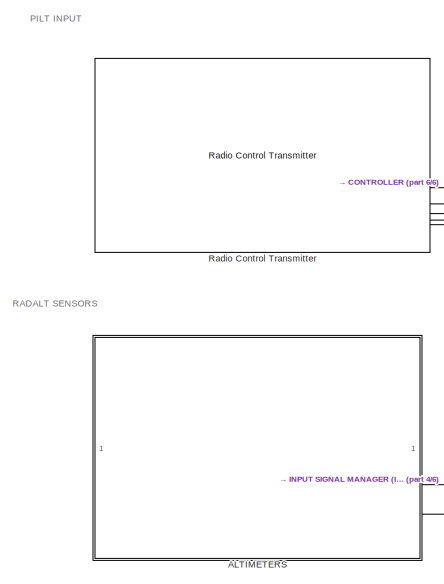
[diagram: root canvas - part 1/6, top left region]
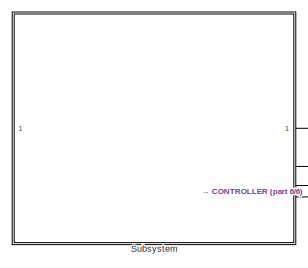
[diagram: root canvas - part 2/6, top center region]
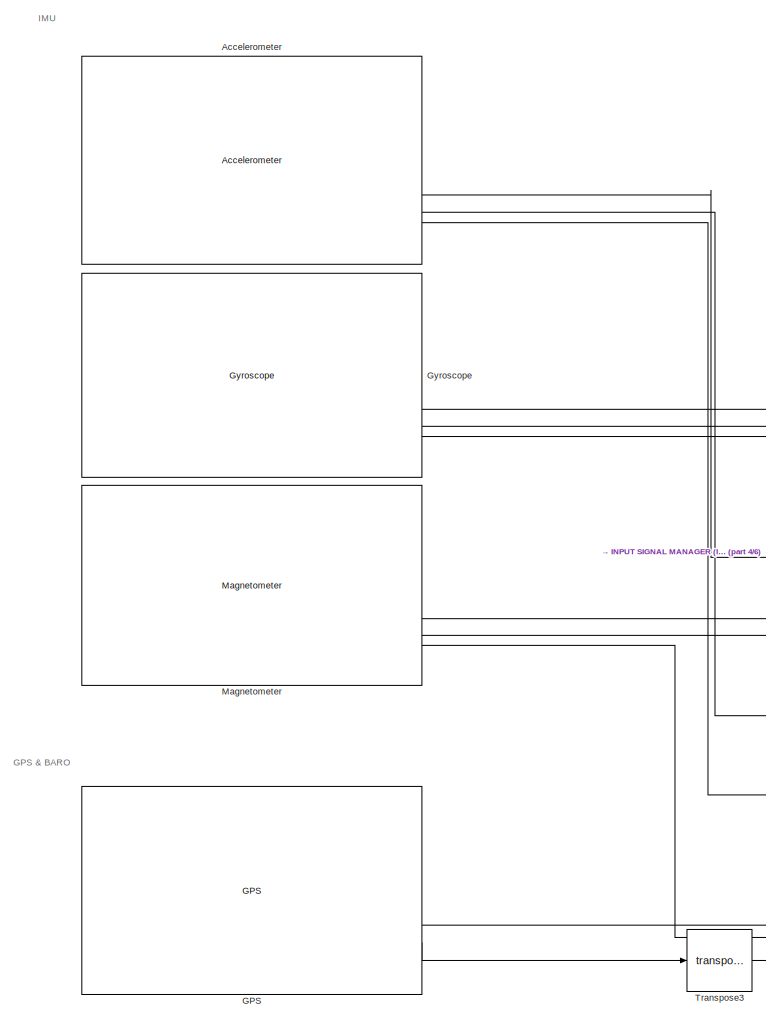
[diagram: root canvas - part 3/6, bottom left region]
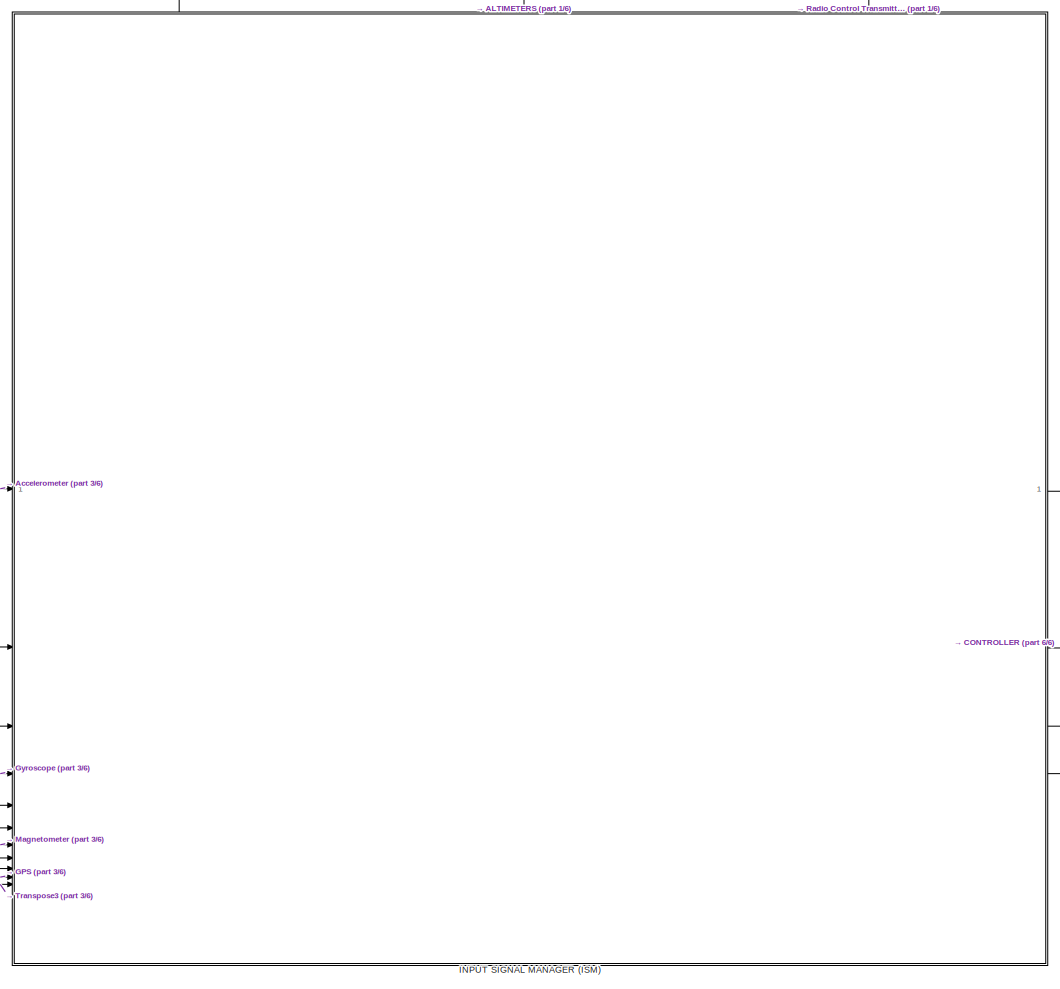
[diagram: root canvas - part 4/6, bottom center region]
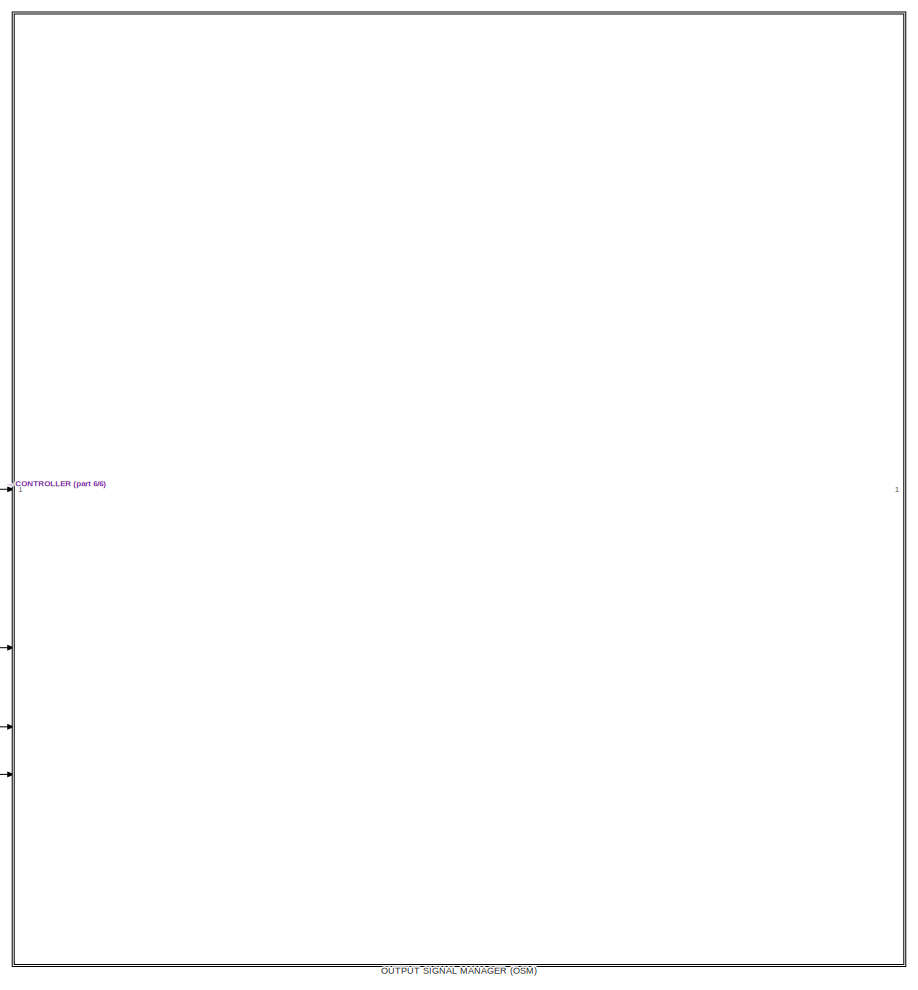
[diagram: root canvas - part 5/6, bottom right region]
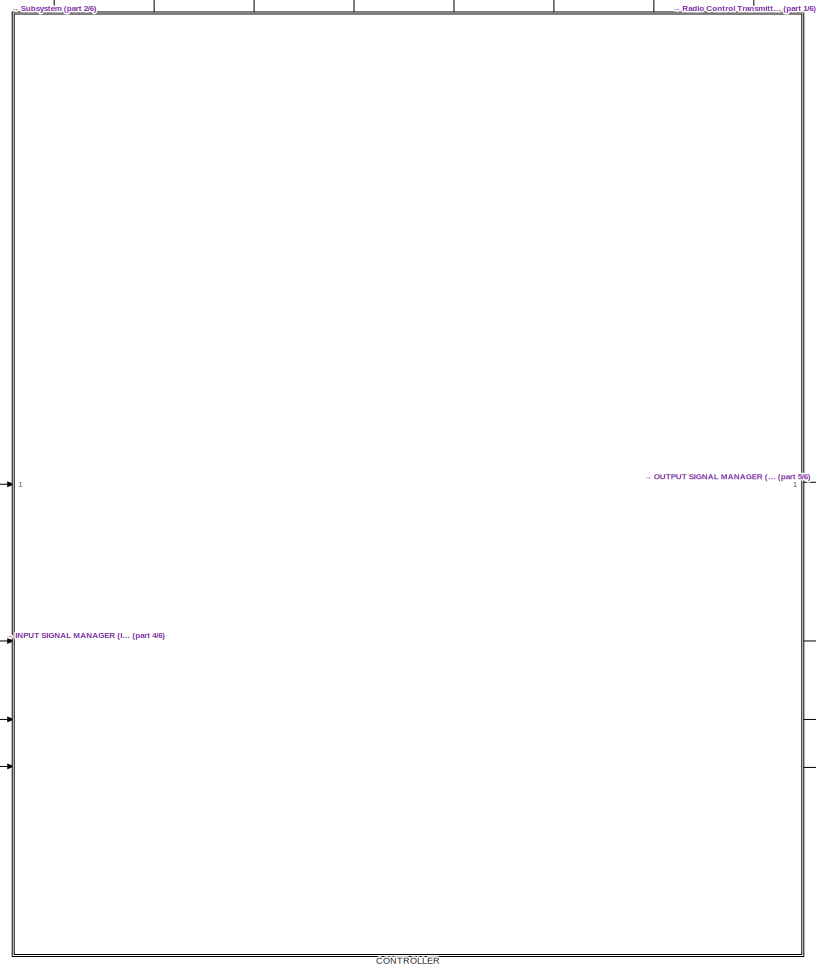
[diagram: root canvas - part 6/6, bottom center region]
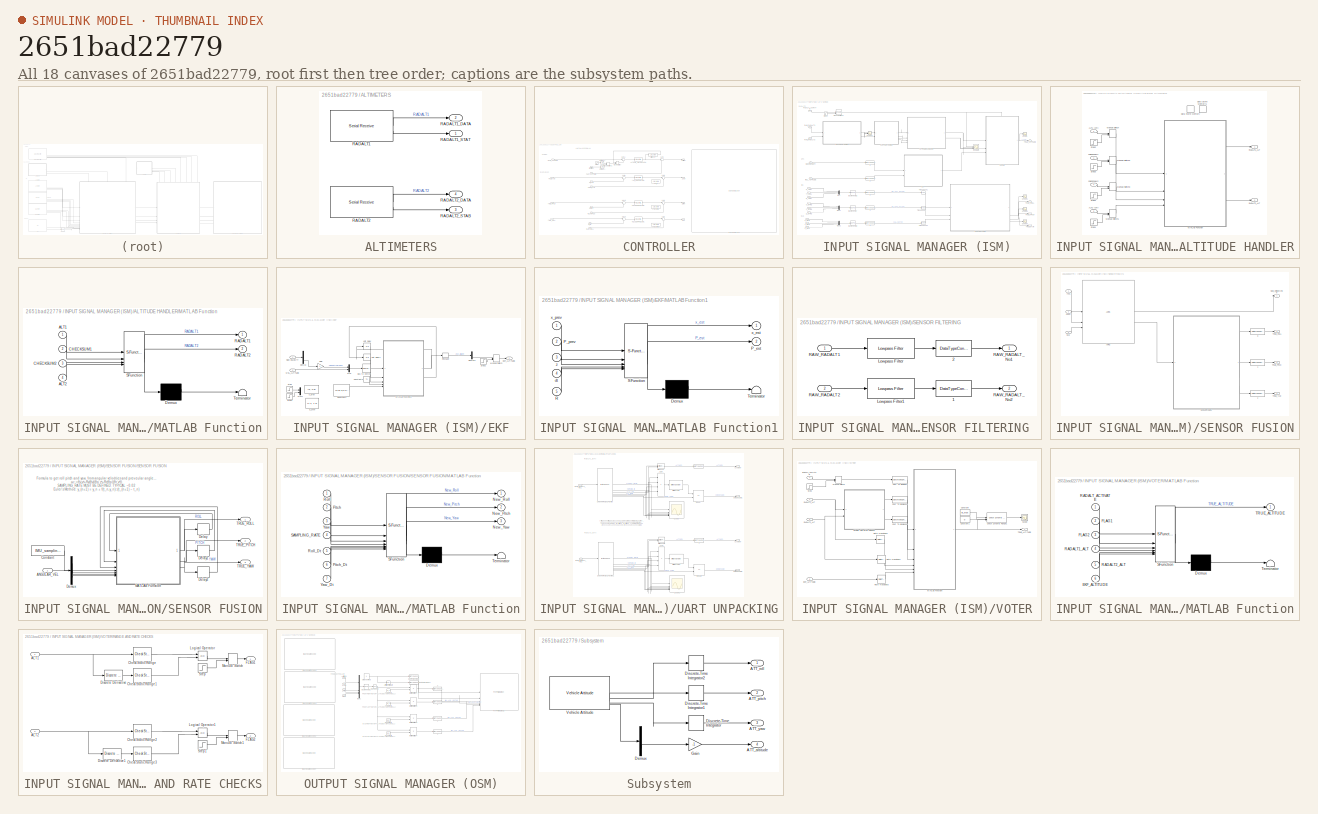
[diagram: thumbnail index - all 18 canvases of the model, root first then tree order]
MODEL slx_2651bad22779
KIND model
CONFIG AbsTol = auto
CONFIG EnableMultiTasking = off
CONFIG FixedStep = auto
CONFIG MaxStep = auto
CONFIG MinStep = auto
CONFIG RelTol = 1e-3
CONFIG SampleTimeConstraint = Unconstrained
CONFIG SolverName = VariableStepAuto
CONFIG StartTime = 0.0
CONFIG StopTime = 5
BLOCK [SubSystem] ALTIMETERS
BLOCK [Reference] ALTIMETERS/RADALT1  REF=px4lib/Serial Receive
  SourceBlock = px4lib/Serial Receive
  SourceType = PX4 Serial Receive
BLOCK [Outport] ALTIMETERS/RADALT1_DATA
  Port = 2
BLOCK [Outport] ALTIMETERS/RADALT1_STAT
BLOCK [Reference] ALTIMETERS/RADALT2  REF=px4lib/Serial Receive
  SourceBlock = px4lib/Serial Receive
  SourceType = PX4 Serial Receive
BLOCK [Outport] ALTIMETERS/RADALT2_DATA
  Port = 4
BLOCK [Outport] ALTIMETERS/RADALT2_STAB
  Port = 3
BLOCK [Reference] Accelerometer  REF=px4Sensorslib/Accelerometer
  SourceBlock = px4Sensorslib/Accelerometer
  SourceType = PX4 Accelerometer
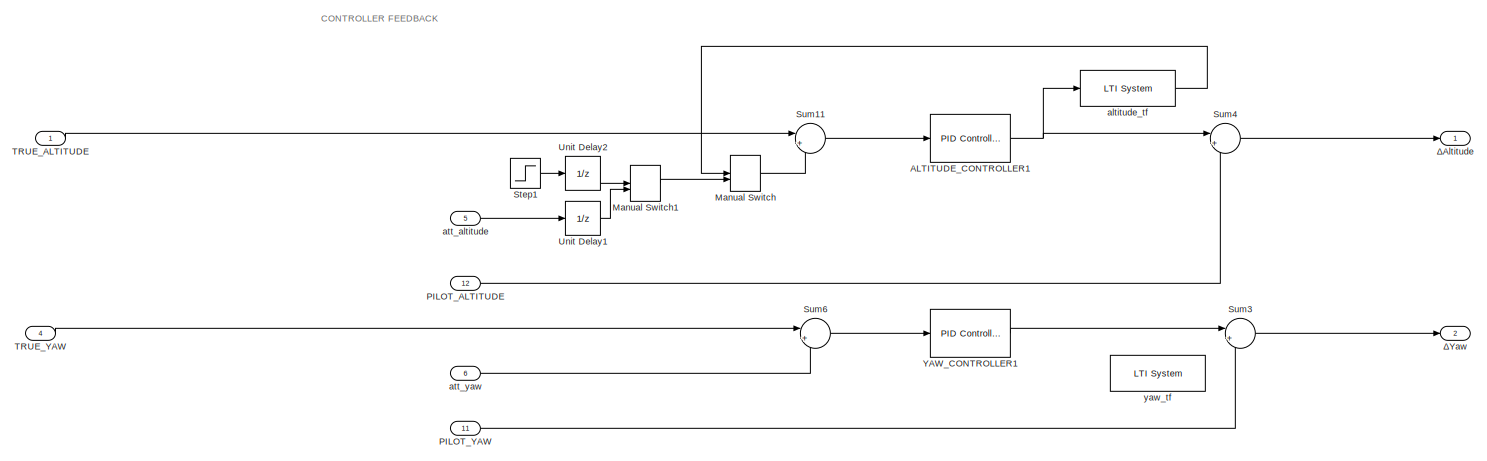
[diagram: CONTROLLER - part 1/4, top left region]
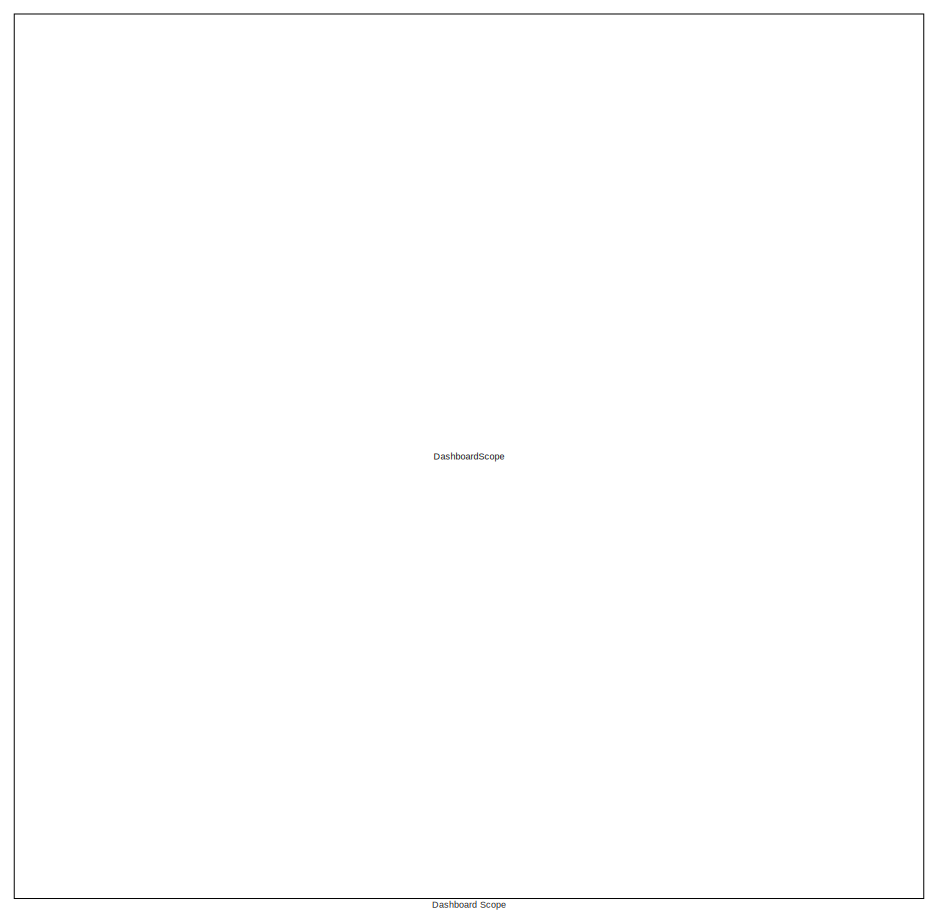
[diagram: CONTROLLER - part 2/4, right side, full height]
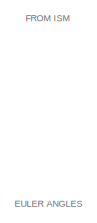
[diagram: CONTROLLER - part 3/4, top left region]
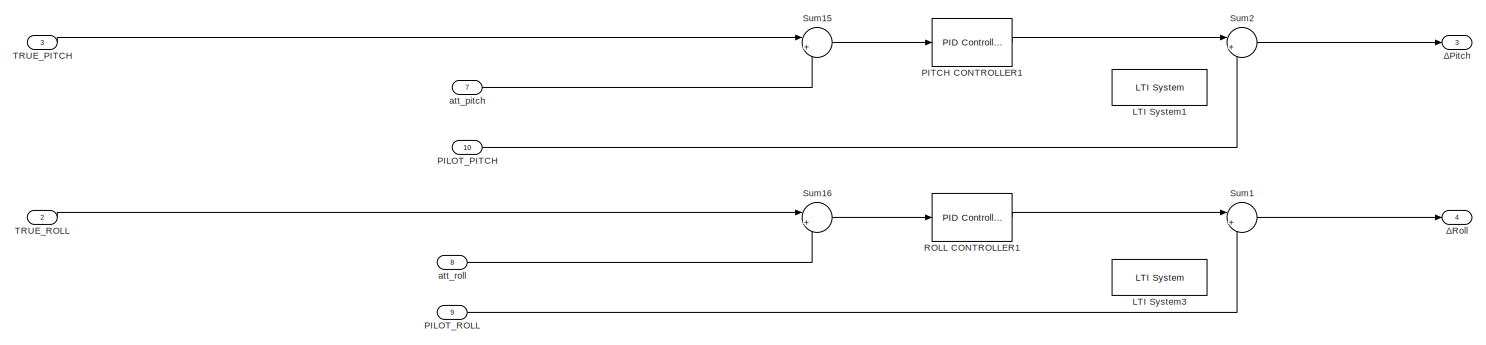
[diagram: CONTROLLER - part 4/4, bottom left region]
BLOCK [SubSystem] CONTROLLER
  PortSchema = {"entries":[{"content":{"sides":[{"content":{"connectorIds":["In1","In2","In3","In4"]},"type":"ConnectorPlacement.EquallySpacedRectSide","uuid":"b32f6c27-b4b4-43d4-a12f-bb52559986eb"},{"content":{"connectorIds":["Out1","Out2","Out3","Out4"],"side":"RIGHT"},"type":"ConnectorPlacement.EquallySpacedRectSide","uuid":"bab16402-6e46-41ac-967f-b826d0c64ec3"},{"content":{"connectorIds":["In5","In6","In7",...<+455ch>
BLOCK [Reference] CONTROLLER/ALTITUDE_CONTROLLER1  REF=slpidlib/PID Controller
  SourceBlock = slpidlib/PID Controller
  SourceType = PID 1dof
BLOCK [DashboardScope] CONTROLLER/Dashboard Scope
  Ymax = 10
  Ymin = -2
BLOCK [Reference] CONTROLLER/LTI System1  REF=cstblocks/LTI System
  Commented = on
  SourceBlock = cstblocks/LTI System
  SourceType = LTI Block
BLOCK [Reference] CONTROLLER/LTI System3  REF=cstblocks/LTI System
  Commented = on
  SourceBlock = cstblocks/LTI System
  SourceType = LTI Block
BLOCK [ManualSwitch] CONTROLLER/Manual Switch
BLOCK [ManualSwitch] CONTROLLER/Manual Switch1
BLOCK [Inport] CONTROLLER/PILOT_ALTITUDE
  Port = 12
BLOCK [Inport] CONTROLLER/PILOT_PITCH
  Port = 10
BLOCK [Inport] CONTROLLER/PILOT_ROLL
  Port = 9
BLOCK [Inport] CONTROLLER/PILOT_YAW
  Port = 11
BLOCK [Reference] CONTROLLER/PITCH CONTROLLER1  REF=slpidlib/PID Controller
  SourceBlock = slpidlib/PID Controller
  SourceType = PID 1dof
BLOCK [Reference] CONTROLLER/ROLL CONTROLLER1  REF=slpidlib/PID Controller
  SourceBlock = slpidlib/PID Controller
  SourceType = PID 1dof
BLOCK [Step] CONTROLLER/Step1
  After = 5
  Before = 4.9
  SampleTime = 0.1
  Time = 10
BLOCK [Sum] CONTROLLER/Sum1
  Inputs = |++
BLOCK [Sum] CONTROLLER/Sum11
  Inputs = |+-
BLOCK [Sum] CONTROLLER/Sum15
  Inputs = |+-
BLOCK [Sum] CONTROLLER/Sum16
  Inputs = |+-
BLOCK [Sum] CONTROLLER/Sum2
  Inputs = |++
BLOCK [Sum] CONTROLLER/Sum3
  Inputs = |++
BLOCK [Sum] CONTROLLER/Sum4
  Inputs = |++
BLOCK [Sum] CONTROLLER/Sum6
  Inputs = |+-
BLOCK [Inport] CONTROLLER/TRUE_ALTITUDE
BLOCK [Inport] CONTROLLER/TRUE_PITCH
  Port = 3
BLOCK [Inport] CONTROLLER/TRUE_ROLL
  Port = 2
BLOCK [Inport] CONTROLLER/TRUE_YAW
  Port = 4
BLOCK [UnitDelay] CONTROLLER/Unit Delay1
  HasFrameUpgradeWarning = on
  SampleTime = -1
BLOCK [UnitDelay] CONTROLLER/Unit Delay2
  HasFrameUpgradeWarning = on
  SampleTime = -1
BLOCK [Reference] CONTROLLER/YAW_CONTROLLER1  REF=slpidlib/PID Controller
  SourceBlock = slpidlib/PID Controller
  SourceType = PID 1dof
BLOCK [Reference] CONTROLLER/altitude_tf  REF=cstblocks/LTI System
  SourceBlock = cstblocks/LTI System
  SourceType = LTI Block
BLOCK [Inport] CONTROLLER/att_altitude
  Port = 5
BLOCK [Inport] CONTROLLER/att_pitch
  Port = 7
BLOCK [Inport] CONTROLLER/att_roll
  Port = 8
BLOCK [Inport] CONTROLLER/att_yaw
  Port = 6
BLOCK [Reference] CONTROLLER/yaw_tf  REF=cstblocks/LTI System
  Commented = on
  SourceBlock = cstblocks/LTI System
  SourceType = LTI Block
BLOCK [Outport] CONTROLLER/ΔAltitude
BLOCK [Outport] CONTROLLER/ΔPitch
  Port = 3
BLOCK [Outport] CONTROLLER/ΔRoll
  Port = 4
BLOCK [Outport] CONTROLLER/ΔYaw
  Port = 2
BLOCK [Reference] GPS  REF=px4Sensorslib/GPS
  SourceBlock = px4Sensorslib/GPS
  SourceType = PX4 GPS
BLOCK [Reference] Gyroscope  REF=px4Sensorslib/Gyroscope
  NameLocation = top
  SourceBlock = px4Sensorslib/Gyroscope
  SourceType = PX4 Gyroscope
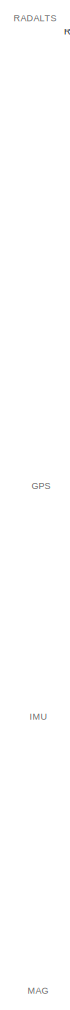
[diagram: INPUT SIGNAL MANAGER (ISM) - part 1/4, left side, full height]
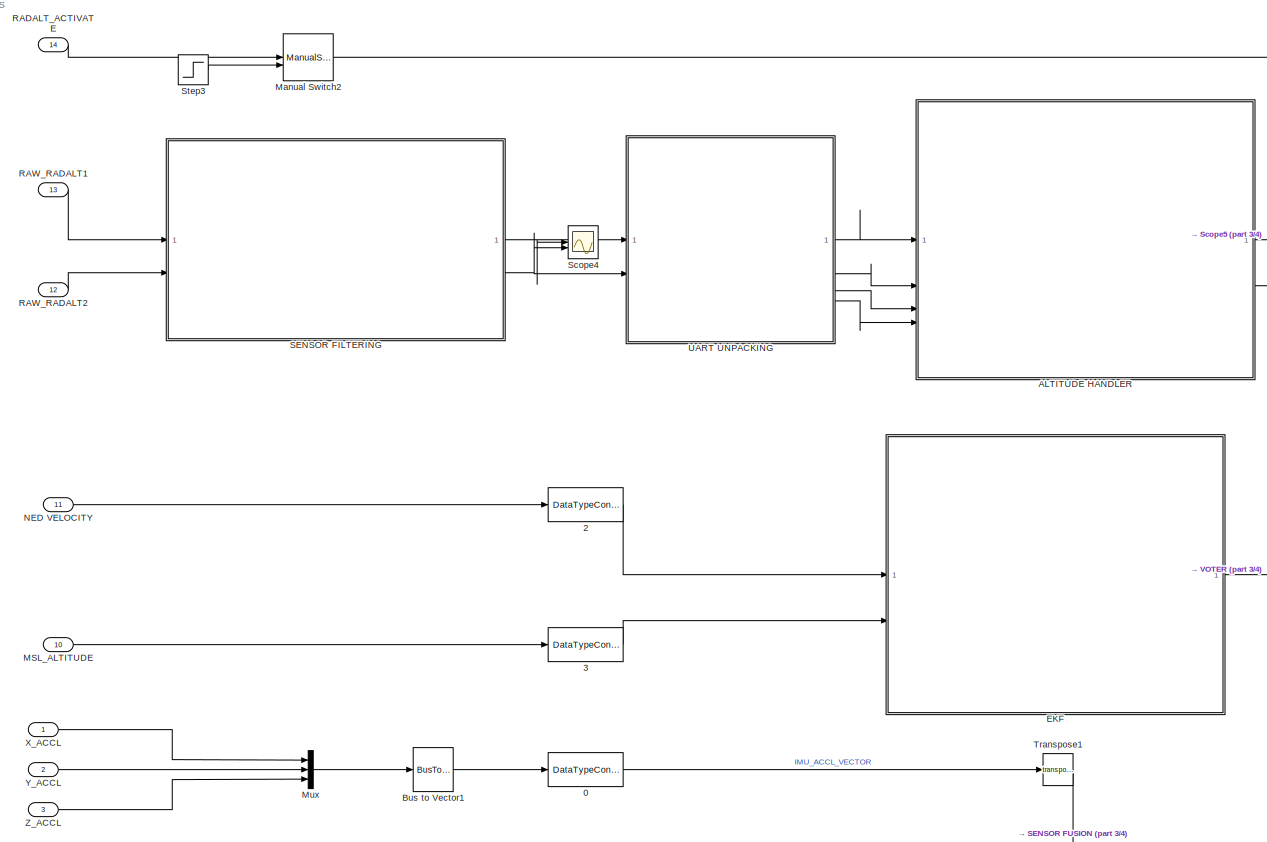
[diagram: INPUT SIGNAL MANAGER (ISM) - part 2/4, middle left region]
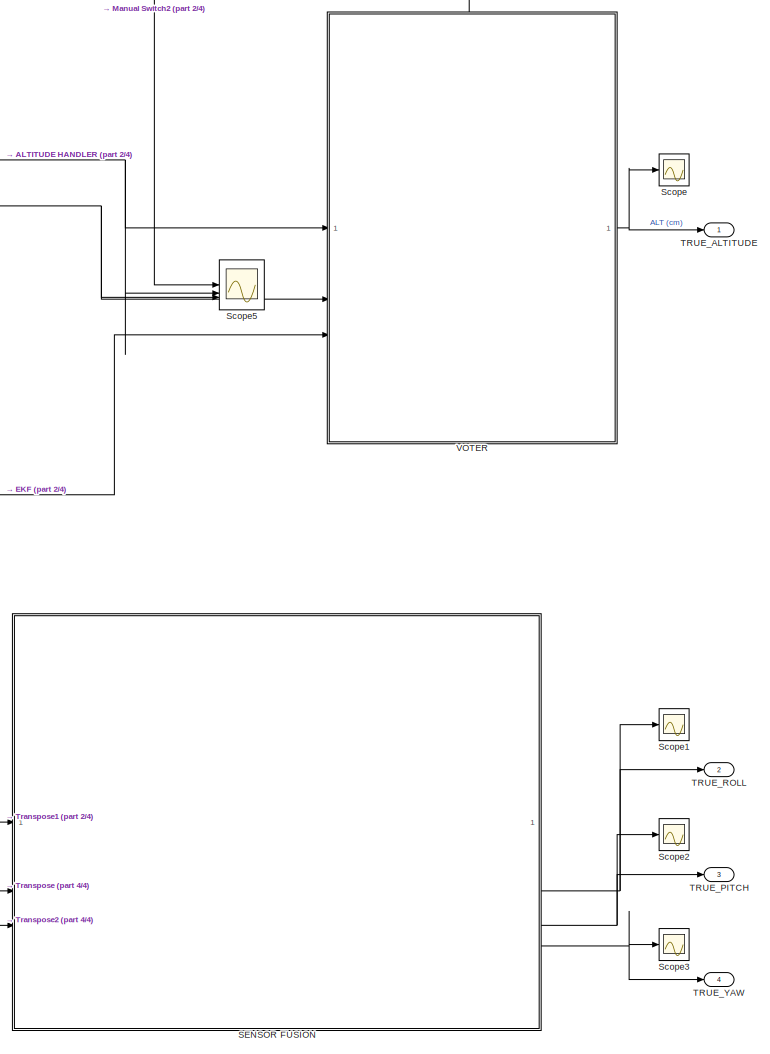
[diagram: INPUT SIGNAL MANAGER (ISM) - part 3/4, right side, full height]
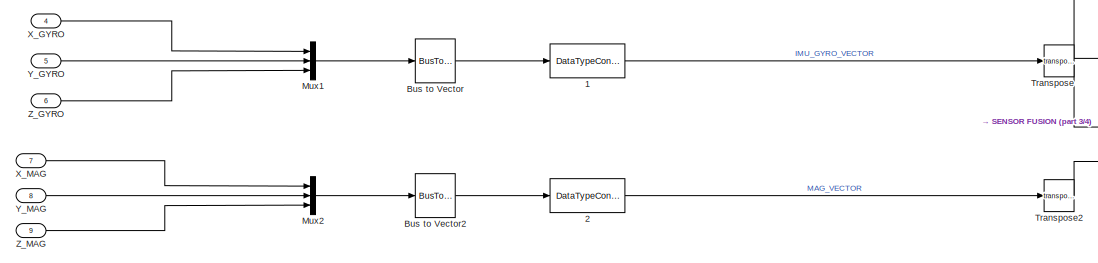
[diagram: INPUT SIGNAL MANAGER (ISM) - part 4/4, bottom left region]
BLOCK [SubSystem] INPUT SIGNAL MANAGER (ISM)
  PortSchema = {"entries":[{"content":{"sides":[{"content":{"connectorIds":["In1","In2","In3","In4","In5","In6","In7","In8","In9","In10","In11"]},"type":"ConnectorPlacement.EquallySpacedRectSide","uuid":"5b240cc7-ef56-4424-b991-67f01d80d984"},{"content":{"connectorIds":["Out1","Out2","Out3","Out4"],"side":"RIGHT"},"type":"ConnectorPlacement.EquallySpacedRectSide","uuid":"4a4e274e-121a-48d3-8cee-a4467ab5abd6"},{"...<+343ch>
BLOCK [DataTypeConversion] INPUT SIGNAL MANAGER (ISM)/ 2
  OutDataTypeStr = double
  RndMeth = Floor
  SaturateOnIntegerOverflow = off
BLOCK [DataTypeConversion] INPUT SIGNAL MANAGER (ISM)/0 
  OutDataTypeStr = double
  RndMeth = Floor
  SaturateOnIntegerOverflow = off
BLOCK [DataTypeConversion] INPUT SIGNAL MANAGER (ISM)/1
  OutDataTypeStr = double
  RndMeth = Floor
  SaturateOnIntegerOverflow = off
BLOCK [DataTypeConversion] INPUT SIGNAL MANAGER (ISM)/2
  OutDataTypeStr = double
  RndMeth = Floor
  SaturateOnIntegerOverflow = off
BLOCK [DataTypeConversion] INPUT SIGNAL MANAGER (ISM)/3
  OutDataTypeStr = double
  RndMeth = Floor
  SaturateOnIntegerOverflow = off
BLOCK [SubSystem] INPUT SIGNAL MANAGER (ISM)/ALTITUDE HANDLER
BLOCK [Inport] INPUT SIGNAL MANAGER (ISM)/ALTITUDE HANDLER/ALT1 (cm)
  Port = 2
BLOCK [Inport] INPUT SIGNAL MANAGER (ISM)/ALTITUDE HANDLER/ALT2 (cm)
  Port = 3
BLOCK [Inport] INPUT SIGNAL MANAGER (ISM)/ALTITUDE HANDLER/CHECKSUM1
BLOCK [Inport] INPUT SIGNAL MANAGER (ISM)/ALTITUDE HANDLER/CHECKSUM2
  Port = 4
BLOCK [DataStoreMemory] INPUT SIGNAL MANAGER (ISM)/ALTITUDE HANDLER/Data Store Memory
  DataStoreName = Alt_Max
  ShowAdditionalParam = off
  WriteAfterWriteMsg = warning
BLOCK [DataStoreMemory] INPUT SIGNAL MANAGER (ISM)/ALTITUDE HANDLER/Data Store Memory1
  DataStoreName = Alt_Min
  ShowAdditionalParam = off
  WriteAfterWriteMsg = warning
BLOCK [SubSystem] INPUT SIGNAL MANAGER (ISM)/ALTITUDE HANDLER/MATLAB Function
  ErrorFcn = Stateflow.Translate.translate
  PermitHierarchicalResolution = ExplicitOnly
  SFBlockType = MATLAB Function
  TreatAsAtomicUnit = on
BLOCK [Demux] INPUT SIGNAL MANAGER (ISM)/ALTITUDE HANDLER/MATLAB Function/ Demux 
  Outputs = 1
BLOCK [S-Function] INPUT SIGNAL MANAGER (ISM)/ALTITUDE HANDLER/MATLAB Function/ SFunction 
  EnableBusSupport = on
  FunctionName = sf_sfun
  PortCounts = [4 3]
  SFcnIsStateOwnerBlock = off
  SFunctionDeploymentMode = off
  Tag = Stateflow S-Function 3
BLOCK [Terminator] INPUT SIGNAL MANAGER (ISM)/ALTITUDE HANDLER/MATLAB Function/ Terminator 
BLOCK [Inport] INPUT SIGNAL MANAGER (ISM)/ALTITUDE HANDLER/MATLAB Function/ALT1
BLOCK [Inport] INPUT SIGNAL MANAGER (ISM)/ALTITUDE HANDLER/MATLAB Function/ALT2
  Port = 4
BLOCK [Inport] INPUT SIGNAL MANAGER (ISM)/ALTITUDE HANDLER/MATLAB Function/CHECKSUM1
  Port = 2
BLOCK [Inport] INPUT SIGNAL MANAGER (ISM)/ALTITUDE HANDLER/MATLAB Function/CHECKSUM2
  Port = 3
BLOCK [Outport] INPUT SIGNAL MANAGER (ISM)/ALTITUDE HANDLER/MATLAB Function/RADALT1
BLOCK [Outport] INPUT SIGNAL MANAGER (ISM)/ALTITUDE HANDLER/MATLAB Function/RADALT2
  Port = 2
BLOCK [ManualSwitch] INPUT SIGNAL MANAGER (ISM)/ALTITUDE HANDLER/Manual Switch
  CurrentSetting = 0
BLOCK [ManualSwitch] INPUT SIGNAL MANAGER (ISM)/ALTITUDE HANDLER/Manual Switch1
  CurrentSetting = 0
BLOCK [ManualSwitch] INPUT SIGNAL MANAGER (ISM)/ALTITUDE HANDLER/Manual Switch2
  CurrentSetting = 0
BLOCK [ManualSwitch] INPUT SIGNAL MANAGER (ISM)/ALTITUDE HANDLER/Manual Switch3
  CurrentSetting = 0
BLOCK [Outport] INPUT SIGNAL MANAGER (ISM)/ALTITUDE HANDLER/RADALT1_ALT
BLOCK [Outport] INPUT SIGNAL MANAGER (ISM)/ALTITUDE HANDLER/RADALT2_ALT
  Port = 2
BLOCK [Step] INPUT SIGNAL MANAGER (ISM)/ALTITUDE HANDLER/Step1
  After = 5
  Before = 5
  SampleTime = 10
  Time = 10
BLOCK [Step] INPUT SIGNAL MANAGER (ISM)/ALTITUDE HANDLER/Step2
  After = 5
  Before = 5
  SampleTime = 10
  Time = 10
BLOCK [Step] INPUT SIGNAL MANAGER (ISM)/ALTITUDE HANDLER/Step3
  Before = 1
  SampleTime = 10
  Time = 10
BLOCK [Step] INPUT SIGNAL MANAGER (ISM)/ALTITUDE HANDLER/Step4
  Before = 1
  SampleTime = 10
  Time = 10
BLOCK [BusToVector] INPUT SIGNAL MANAGER (ISM)/Bus to Vector
BLOCK [BusToVector] INPUT SIGNAL MANAGER (ISM)/Bus to Vector1
BLOCK [BusToVector] INPUT SIGNAL MANAGER (ISM)/Bus to Vector2
BLOCK [SubSystem] INPUT SIGNAL MANAGER (ISM)/EKF
BLOCK [BusToVector] INPUT SIGNAL MANAGER (ISM)/EKF/Bus to Vector
BLOCK [Constant] INPUT SIGNAL MANAGER (ISM)/EKF/Constant3
  Value = Ts
BLOCK [Constant] INPUT SIGNAL MANAGER (ISM)/EKF/Constant4
  Value = [0.01 0;0 0.01]
BLOCK [Demux] INPUT SIGNAL MANAGER (ISM)/EKF/Demux
  Outputs = 3
BLOCK [Demux] INPUT SIGNAL MANAGER (ISM)/EKF/Demux1
BLOCK [Outport] INPUT SIGNAL MANAGER (ISM)/EKF/EKF_ALTITUDE
BLOCK [Gain] INPUT SIGNAL MANAGER (ISM)/EKF/Gain
  Gain = -1
BLOCK [SubSystem] INPUT SIGNAL MANAGER (ISM)/EKF/MATLAB Function1
  ErrorFcn = Stateflow.Translate.translate
  PermitHierarchicalResolution = ExplicitOnly
  SFBlockType = MATLAB Function
  TreatAsAtomicUnit = on
BLOCK [Demux] INPUT SIGNAL MANAGER (ISM)/EKF/MATLAB Function1/ Demux 
  Outputs = 1
BLOCK [S-Function] INPUT SIGNAL MANAGER (ISM)/EKF/MATLAB Function1/ SFunction 
  EnableBusSupport = on
  FunctionName = sf_sfun
  PortCounts = [5 3]
  SFcnIsStateOwnerBlock = off
  SFunctionDeploymentMode = off
  Tag = Stateflow S-Function 4
BLOCK [Terminator] INPUT SIGNAL MANAGER (ISM)/EKF/MATLAB Function1/ Terminator 
BLOCK [Outport] INPUT SIGNAL MANAGER (ISM)/EKF/MATLAB Function1/P_est
  Port = 2
BLOCK [Inport] INPUT SIGNAL MANAGER (ISM)/EKF/MATLAB Function1/P_prev
  Port = 2
BLOCK [Inport] INPUT SIGNAL MANAGER (ISM)/EKF/MATLAB Function1/R
  Port = 5
BLOCK [Inport] INPUT SIGNAL MANAGER (ISM)/EKF/MATLAB Function1/dt
  Port = 4
BLOCK [Outport] INPUT SIGNAL MANAGER (ISM)/EKF/MATLAB Function1/x_est
BLOCK [Inport] INPUT SIGNAL MANAGER (ISM)/EKF/MATLAB Function1/x_prev
BLOCK [Inport] INPUT SIGNAL MANAGER (ISM)/EKF/MATLAB Function1/z
  Port = 3
BLOCK [Inport] INPUT SIGNAL MANAGER (ISM)/EKF/MSL_ALTITUDE
  Port = 2
BLOCK [ManualSwitch] INPUT SIGNAL MANAGER (ISM)/EKF/Manual Switch
BLOCK [Mux] INPUT SIGNAL MANAGER (ISM)/EKF/Mux
  DisplayOption = bar
  Inputs = 2
BLOCK [Mux] INPUT SIGNAL MANAGER (ISM)/EKF/Mux1
  Commented = on
  DisplayOption = bar
  Inputs = 2
BLOCK [Inport] INPUT SIGNAL MANAGER (ISM)/EKF/NED VELOCITY
  NameLocation = top
BLOCK [Reshape] INPUT SIGNAL MANAGER (ISM)/EKF/Reshape
BLOCK [Step] INPUT SIGNAL MANAGER (ISM)/EKF/Step
  After = 5
  Before = 5
  Commented = on
  SampleTime = 0.02
  Time = 5
BLOCK [Step] INPUT SIGNAL MANAGER (ISM)/EKF/Step1
  After = 0.5
  Before = 0.5
  Commented = on
  SampleTime = 0.02
  Time = 5
BLOCK [Step] INPUT SIGNAL MANAGER (ISM)/EKF/Step2
  After = 5
  Before = 5
  SampleTime = 1
  Time = 10
BLOCK [UnitDelay] INPUT SIGNAL MANAGER (ISM)/EKF/Unit Delay
  HasFrameUpgradeWarning = on
  SampleTime = -1
BLOCK [UnitDelay] INPUT SIGNAL MANAGER (ISM)/EKF/Unit Delay1
  HasFrameUpgradeWarning = on
  SampleTime = -1
BLOCK [Constant] INPUT SIGNAL MANAGER (ISM)/EKF/p_prev
  Commented = on
  Value = [1 1; 1 1]
BLOCK [Constant] INPUT SIGNAL MANAGER (ISM)/EKF/x_prev
  Commented = on
  Value = [5; 0.5]
BLOCK [Inport] INPUT SIGNAL MANAGER (ISM)/MSL_ALTITUDE
  Port = 10
BLOCK [ManualSwitch] INPUT SIGNAL MANAGER (ISM)/Manual Switch2
  CurrentSetting = 0
BLOCK [Mux] INPUT SIGNAL MANAGER (ISM)/Mux
  DisplayOption = bar
  Inputs = 3
BLOCK [Mux] INPUT SIGNAL MANAGER (ISM)/Mux1
  DisplayOption = bar
  Inputs = 3
BLOCK [Mux] INPUT SIGNAL MANAGER (ISM)/Mux2
  DisplayOption = bar
  Inputs = 3
BLOCK [Inport] INPUT SIGNAL MANAGER (ISM)/NED VELOCITY
  Port = 11
BLOCK [Inport] INPUT SIGNAL MANAGER (ISM)/RADALT_ACTIVATE
  Port = 14
BLOCK [Inport] INPUT SIGNAL MANAGER (ISM)/RAW_RADALT1
  Port = 13
BLOCK [Inport] INPUT SIGNAL MANAGER (ISM)/RAW_RADALT2
  Port = 12
BLOCK [SubSystem] INPUT SIGNAL MANAGER (ISM)/SENSOR FILTERING 
BLOCK [DataTypeConversion] INPUT SIGNAL MANAGER (ISM)/SENSOR FILTERING /1
  OutDataTypeStr = uint8
  RndMeth = Floor
  SaturateOnIntegerOverflow = off
BLOCK [DataTypeConversion] INPUT SIGNAL MANAGER (ISM)/SENSOR FILTERING /2
  OutDataTypeStr = uint8
  RndMeth = Floor
  SaturateOnIntegerOverflow = off
BLOCK [Reference] INPUT SIGNAL MANAGER (ISM)/SENSOR FILTERING /Lowpass Filter  REF=dspfdesign/Lowpass Filter
  SourceBlock = dspfdesign/Lowpass Filter
  SourceType = dsp.simulink.LowpassFilter
BLOCK [Reference] INPUT SIGNAL MANAGER (ISM)/SENSOR FILTERING /Lowpass Filter1  REF=dspfdesign/Lowpass Filter
  SourceBlock = dspfdesign/Lowpass Filter
  SourceType = dsp.simulink.LowpassFilter
BLOCK [Inport] INPUT SIGNAL MANAGER (ISM)/SENSOR FILTERING /RAW_RADALT1
BLOCK [Inport] INPUT SIGNAL MANAGER (ISM)/SENSOR FILTERING /RAW_RADALT2
  Port = 2
BLOCK [Outport] INPUT SIGNAL MANAGER (ISM)/SENSOR FILTERING /RAW_RADALT_No1
BLOCK [Outport] INPUT SIGNAL MANAGER (ISM)/SENSOR FILTERING /RAW_RADALT_No2
  Port = 2
BLOCK [SubSystem] INPUT SIGNAL MANAGER (ISM)/SENSOR FUSION
BLOCK [DataTypeConversion] INPUT SIGNAL MANAGER (ISM)/SENSOR FUSION/ 1
  OutDataTypeStr = double
  RndMeth = Floor
  SaturateOnIntegerOverflow = off
BLOCK [DataTypeConversion] INPUT SIGNAL MANAGER (ISM)/SENSOR FUSION/ 2
  OutDataTypeStr = double
  RndMeth = Floor
  SaturateOnIntegerOverflow = off
BLOCK [DataTypeConversion] INPUT SIGNAL MANAGER (ISM)/SENSOR FUSION/0 
  OutDataTypeStr = double
  RndMeth = Floor
  SaturateOnIntegerOverflow = off
BLOCK [Inport] INPUT SIGNAL MANAGER (ISM)/SENSOR FUSION/ACCL
BLOCK [Reference] INPUT SIGNAL MANAGER (ISM)/SENSOR FUSION/AHRS  REF=mspfiltlib/AHRS
  SourceBlock = mspfiltlib/AHRS
  SourceType = fusion.simulink.ahrsfilter
BLOCK [Inport] INPUT SIGNAL MANAGER (ISM)/SENSOR FUSION/GYRO
  Port = 2
BLOCK [Inport] INPUT SIGNAL MANAGER (ISM)/SENSOR FUSION/MAG
  Port = 3
BLOCK [Outport] INPUT SIGNAL MANAGER (ISM)/SENSOR FUSION/NED_ORIENTATION
BLOCK [SubSystem] INPUT SIGNAL MANAGER (ISM)/SENSOR FUSION/SENSOR FUSION
BLOCK [Inport] INPUT SIGNAL MANAGER (ISM)/SENSOR FUSION/SENSOR FUSION/ANGULAR_VEL
BLOCK [Constant] INPUT SIGNAL MANAGER (ISM)/SENSOR FUSION/SENSOR FUSION/Constant
  Value = IMU_sampling_rate
BLOCK [Delay] INPUT SIGNAL MANAGER (ISM)/SENSOR FUSION/SENSOR FUSION/Delay
  DelayLength = 1
  InputPortMap = u0
BLOCK [Delay] INPUT SIGNAL MANAGER (ISM)/SENSOR FUSION/SENSOR FUSION/Delay1
  DelayLength = 1
  InputPortMap = u0
BLOCK [Delay] INPUT SIGNAL MANAGER (ISM)/SENSOR FUSION/SENSOR FUSION/Delay2
  DelayLength = 1
  InputPortMap = u0
BLOCK [Demux] INPUT SIGNAL MANAGER (ISM)/SENSOR FUSION/SENSOR FUSION/Demux
  Outputs = 3
BLOCK [SubSystem] INPUT SIGNAL MANAGER (ISM)/SENSOR FUSION/SENSOR FUSION/MATLAB Function
  ErrorFcn = Stateflow.Translate.translate
  PermitHierarchicalResolution = ExplicitOnly
  SFBlockType = MATLAB Function
  TreatAsAtomicUnit = on
BLOCK [Demux] INPUT SIGNAL MANAGER (ISM)/SENSOR FUSION/SENSOR FUSION/MATLAB Function/ Demux 
  Outputs = 1
BLOCK [S-Function] INPUT SIGNAL MANAGER (ISM)/SENSOR FUSION/SENSOR FUSION/MATLAB Function/ SFunction 
  EnableBusSupport = on
  FunctionName = sf_sfun
  PortCounts = [7 4]
  SFcnIsStateOwnerBlock = off
  SFunctionDeploymentMode = off
  Tag = Stateflow S-Function 2
BLOCK [Terminator] INPUT SIGNAL MANAGER (ISM)/SENSOR FUSION/SENSOR FUSION/MATLAB Function/ Terminator 
BLOCK [Outport] INPUT SIGNAL MANAGER (ISM)/SENSOR FUSION/SENSOR FUSION/MATLAB Function/New_Pitch
  Port = 2
BLOCK [Outport] INPUT SIGNAL MANAGER (ISM)/SENSOR FUSION/SENSOR FUSION/MATLAB Function/New_Roll
BLOCK [Outport] INPUT SIGNAL MANAGER (ISM)/SENSOR FUSION/SENSOR FUSION/MATLAB Function/New_Yaw
  Port = 3
BLOCK [Inport] INPUT SIGNAL MANAGER (ISM)/SENSOR FUSION/SENSOR FUSION/MATLAB Function/Pitch
  Port = 2
BLOCK [Inport] INPUT SIGNAL MANAGER (ISM)/SENSOR FUSION/SENSOR FUSION/MATLAB Function/Pitch_Dt
  Port = 6
BLOCK [Inport] INPUT SIGNAL MANAGER (ISM)/SENSOR FUSION/SENSOR FUSION/MATLAB Function/Roll
BLOCK [Inport] INPUT SIGNAL MANAGER (ISM)/SENSOR FUSION/SENSOR FUSION/MATLAB Function/Roll_Dt
  Port = 5
BLOCK [Inport] INPUT SIGNAL MANAGER (ISM)/SENSOR FUSION/SENSOR FUSION/MATLAB Function/SAMPLING_RATE
  Port = 4
BLOCK [Inport] INPUT SIGNAL MANAGER (ISM)/SENSOR FUSION/SENSOR FUSION/MATLAB Function/Yaw
  Port = 3
BLOCK [Inport] INPUT SIGNAL MANAGER (ISM)/SENSOR FUSION/SENSOR FUSION/MATLAB Function/Yaw_Dt
  Port = 7
BLOCK [Outport] INPUT SIGNAL MANAGER (ISM)/SENSOR FUSION/SENSOR FUSION/TRUE_PITCH
  Port = 2
BLOCK [Outport] INPUT SIGNAL MANAGER (ISM)/SENSOR FUSION/SENSOR FUSION/TRUE_ROLL
BLOCK [Outport] INPUT SIGNAL MANAGER (ISM)/SENSOR FUSION/SENSOR FUSION/TRUE_YAW
  Port = 3
BLOCK [Outport] INPUT SIGNAL MANAGER (ISM)/SENSOR FUSION/TRUE_PITCH
  Port = 3
BLOCK [Outport] INPUT SIGNAL MANAGER (ISM)/SENSOR FUSION/TRUE_ROLL
  Port = 2
BLOCK [Outport] INPUT SIGNAL MANAGER (ISM)/SENSOR FUSION/TRUE_YAW
  Port = 4
BLOCK [Scope] INPUT SIGNAL MANAGER (ISM)/Scope
  Floating = off
  NumInputPorts = 1
  ScopeSpecificationString = Simulink.scopes.TimeScopeBlockCfg('CurrentConfiguration', extmgr.ConfigurationSet(extmgr.Configuration('Core','General UI',true),extmgr.Configuration('Core','Source UI',true),extmgr.Configuration('Sources','WiredSimulink',true,'DataLoggingVariableName','ScopeData1'),extmgr.Configuration('Visuals','Time Domain',true,'SerializedDisplays',{struct('MinYLimReal','-0.625','MaxYLimReal','5.625','YLabelRe...<+1386ch>
BLOCK [Scope] INPUT SIGNAL MANAGER (ISM)/Scope1
  Floating = off
  NumInputPorts = 1
  ScopeSpecificationString = Simulink.scopes.TimeScopeBlockCfg
BLOCK [Scope] INPUT SIGNAL MANAGER (ISM)/Scope2
  Floating = off
  NumInputPorts = 1
  ScopeSpecificationString = Simulink.scopes.TimeScopeBlockCfg
BLOCK [Scope] INPUT SIGNAL MANAGER (ISM)/Scope3
  Floating = off
  NumInputPorts = 1
  ScopeSpecificationString = Simulink.scopes.TimeScopeBlockCfg('CurrentConfiguration', extmgr.ConfigurationSet(extmgr.Configuration('Core','General UI',true),extmgr.Configuration('Core','Source UI',true),extmgr.Configuration('Sources','WiredSimulink',true),extmgr.Configuration('Visuals','Time Domain',true),extmgr.Configuration('Tools','Plot Navigation',true),extmgr.Configuration('Tools','Measurements',true)),'Version','2023b'...<+1ch>
BLOCK [Scope] INPUT SIGNAL MANAGER (ISM)/Scope4
  Floating = off
  NumInputPorts = 2
  ScopeSpecificationString = Simulink.scopes.TimeScopeBlockCfg('CurrentConfiguration', extmgr.ConfigurationSet(extmgr.Configuration('Core','General UI',true),extmgr.Configuration('Core','Source UI',true),extmgr.Configuration('Sources','WiredSimulink',true,'DataLoggingVariableName','ScopeData1'),extmgr.Configuration('Visuals','Time Domain',true,'SerializedDisplays',{struct('MinYLimReal','-1.00000','MaxYLimReal','1.00000','YLab...<+1645ch>
BLOCK [Scope] INPUT SIGNAL MANAGER (ISM)/Scope5
  Floating = off
  NumInputPorts = 3
  ScopeSpecificationString = Simulink.scopes.TimeScopeBlockCfg('CurrentConfiguration', extmgr.ConfigurationSet(extmgr.Configuration('Core','General UI',true),extmgr.Configuration('Core','Source UI',true),extmgr.Configuration('Sources','WiredSimulink',true,'DataLoggingVariableName','ScopeData2'),extmgr.Configuration('Visuals','Time Domain',true,'SerializedDisplays',{struct('MinYLimReal','-2.40005','MaxYLimReal','5.64538','YLab...<+1543ch>
BLOCK [Step] INPUT SIGNAL MANAGER (ISM)/Step3
  Before = 1
  SampleTime = 10
  Time = 10
BLOCK [Outport] INPUT SIGNAL MANAGER (ISM)/TRUE_ALTITUDE
  NameLocation = right
BLOCK [Outport] INPUT SIGNAL MANAGER (ISM)/TRUE_PITCH
  NameLocation = right
  Port = 3
BLOCK [Outport] INPUT SIGNAL MANAGER (ISM)/TRUE_ROLL
  NameLocation = right
  Port = 2
BLOCK [Outport] INPUT SIGNAL MANAGER (ISM)/TRUE_YAW
  NameLocation = right
  Port = 4
BLOCK [Math] INPUT SIGNAL MANAGER (ISM)/Transpose
  Operator = transpose
BLOCK [Math] INPUT SIGNAL MANAGER (ISM)/Transpose1
  Operator = transpose
BLOCK [Math] INPUT SIGNAL MANAGER (ISM)/Transpose2
  Operator = transpose
BLOCK [SubSystem] INPUT SIGNAL MANAGER (ISM)/UART UNPACKING
BLOCK [DataTypeConversion] INPUT SIGNAL MANAGER (ISM)/UART UNPACKING/ 
  OutDataTypeStr = double
  RndMeth = Floor
  SaturateOnIntegerOverflow = off
BLOCK [DataTypeConversion] INPUT SIGNAL MANAGER (ISM)/UART UNPACKING/ 1
  OutDataTypeStr = double
  RndMeth = Floor
  SaturateOnIntegerOverflow = off
BLOCK [Outport] INPUT SIGNAL MANAGER (ISM)/UART UNPACKING/ALT1 (cm)
  Port = 2
BLOCK [Outport] INPUT SIGNAL MANAGER (ISM)/UART UNPACKING/ALT2 (cm)
  Port = 3
BLOCK [Reference] INPUT SIGNAL MANAGER (ISM)/UART UNPACKING/Bit Concat  REF=hdlsllib/Logic and Bit
Operations/Bit Concat
  SourceBlock = hdlsllib/Logic and Bit\nOperations/Bit Concat
  SourceType = Bit Concat
BLOCK [Reference] INPUT SIGNAL MANAGER (ISM)/UART UNPACKING/Bit Concat1  REF=hdlsllib/Logic and Bit
Operations/Bit Concat
  SourceBlock = hdlsllib/Logic and Bit\nOperations/Bit Concat
  SourceType = Bit Concat
BLOCK [Reference] INPUT SIGNAL MANAGER (ISM)/UART UNPACKING/Bitwise AND  REF=simulink/Logic and Bit
Operations/Bitwise
Operator
  LibrarySourceBlock = simulink/Quick Insert/Logic and Bit\nOperations/Bitwise AND
  SourceBlock = simulink/Logic and Bit\nOperations/Bitwise\nOperator
  SourceType = Bitwise Operator
BLOCK [Reference] INPUT SIGNAL MANAGER (ISM)/UART UNPACKING/Bitwise AND1  REF=simulink/Logic and Bit
Operations/Bitwise
Operator
  LibrarySourceBlock = simulink/Quick Insert/Logic and Bit\nOperations/Bitwise AND
  SourceBlock = simulink/Logic and Bit\nOperations/Bitwise\nOperator
  SourceType = Bitwise Operator
BLOCK [Outport] INPUT SIGNAL MANAGER (ISM)/UART UNPACKING/CHECKSUM1
BLOCK [Outport] INPUT SIGNAL MANAGER (ISM)/UART UNPACKING/CHECKSUM2
  Port = 4
BLOCK [RelationalOperator] INPUT SIGNAL MANAGER (ISM)/UART UNPACKING/Equal
  InputSameDT = off
  Operator = ==
  OutDataTypeStr = boolean
  RndMeth = Simplest
BLOCK [RelationalOperator] INPUT SIGNAL MANAGER (ISM)/UART UNPACKING/Equal1
  InputSameDT = off
  Operator = ==
  OutDataTypeStr = boolean
  RndMeth = Simplest
BLOCK [Inport] INPUT SIGNAL MANAGER (ISM)/UART UNPACKING/RAW_RADALT_No1
BLOCK [Inport] INPUT SIGNAL MANAGER (ISM)/UART UNPACKING/RAW_RADALT_No2
  Port = 2
BLOCK [Scope] INPUT SIGNAL MANAGER (ISM)/UART UNPACKING/Scope
  Floating = off
  NumInputPorts = 6
  ScopeSpecificationString = Simulink.scopes.TimeScopeBlockCfg('CurrentConfiguration', extmgr.ConfigurationSet(extmgr.Configuration('Core','General UI',true),extmgr.Configuration('Core','Source UI',true),extmgr.Configuration('Sources','WiredSimulink',true),extmgr.Configuration('Visuals','Time Domain',true,'SerializedDisplays',{struct('MinYLimReal','-10','MaxYLimReal','10','YLabelReal','','MinYLimMag','0','MaxYLimMag','10','Le...<+6086ch>
BLOCK [Scope] INPUT SIGNAL MANAGER (ISM)/UART UNPACKING/Scope1
  Floating = off
  NumInputPorts = 6
  ScopeSpecificationString = Simulink.scopes.TimeScopeBlockCfg('CurrentConfiguration', extmgr.ConfigurationSet(extmgr.Configuration('Core','General UI',true),extmgr.Configuration('Core','Source UI',true),extmgr.Configuration('Sources','WiredSimulink',true,'DataLoggingVariableName','ScopeData1'),extmgr.Configuration('Visuals','Time Domain',true,'SerializedDisplays',{struct('MinYLimReal','-1.00000','MaxYLimReal','1.00000','YLab...<+6148ch>
BLOCK [Sum] INPUT SIGNAL MANAGER (ISM)/UART UNPACKING/Sum
  IconShape = rectangular
  Inputs = ++++
BLOCK [Sum] INPUT SIGNAL MANAGER (ISM)/UART UNPACKING/Sum1
  IconShape = rectangular
  Inputs = ++++
BLOCK [Reference] INPUT SIGNAL MANAGER (ISM)/UART UNPACKING/Unpck 6 RADALT bytes  REF=etargetslib/Byte Unpack
  LibrarySourceBlock = embeddedtargetslib/Host Communication/Byte Unpack
  SourceBlock = etargetslib/Byte Unpack
  SourceType = Byte Unpack
BLOCK [Reference] INPUT SIGNAL MANAGER (ISM)/UART UNPACKING/Unpck 6 RADALT bytes1  REF=etargetslib/Byte Unpack
  LibrarySourceBlock = embeddedtargetslib/Host Communication/Byte Unpack
  SourceBlock = etargetslib/Byte Unpack
  SourceType = Byte Unpack
BLOCK [SubSystem] INPUT SIGNAL MANAGER (ISM)/VOTER
  PortSchema = {"entries":[{"content":{"sides":[{"content":{"connectorIds":["In1","In2","In3"]},"type":"ConnectorPlacement.EquallySpacedRectSide","uuid":"dc1c39ce-0403-459b-94e1-ddedc0ea1ee4"},{"content":{"connectorIds":["Out1"],"side":"RIGHT"},"type":"ConnectorPlacement.EquallySpacedRectSide","uuid":"853442a8-64b8-4778-9114-161db545e8e2"},{"content":{"connectorIds":["In4"],"side":"TOP"},"type":"ConnectorPlaceme...<+257ch>
BLOCK [DataTypeConversion] INPUT SIGNAL MANAGER (ISM)/VOTER/Cast To Boolean
  OutDataTypeStr = boolean
  RndMeth = Floor
  SaturateOnIntegerOverflow = off
BLOCK [DataTypeConversion] INPUT SIGNAL MANAGER (ISM)/VOTER/Cast To Boolean1
  OutDataTypeStr = boolean
  RndMeth = Floor
  SaturateOnIntegerOverflow = off
BLOCK [DataTypeConversion] INPUT SIGNAL MANAGER (ISM)/VOTER/Cast To Boolean2
  OutDataTypeStr = boolean
  RndMeth = Floor
  SaturateOnIntegerOverflow = off
BLOCK [Reference] INPUT SIGNAL MANAGER (ISM)/VOTER/Check Dynamic Range1  REF=simulink/Model
Verification/Check 
Dynamic Range
  Commented = on
  Description = min < u < max
  SourceBlock = simulink/Model\nVerification/Check \nDynamic Range
  SourceType = Checks_DRange
BLOCK [Constant] INPUT SIGNAL MANAGER (ISM)/VOTER/Constant
  Commented = on
  Value = Alt_max
BLOCK [Constant] INPUT SIGNAL MANAGER (ISM)/VOTER/Constant1
  Commented = on
  Value = 0
BLOCK [Inport] INPUT SIGNAL MANAGER (ISM)/VOTER/EKF_ALTITUDE
  Port = 3
BLOCK [SubSystem] INPUT SIGNAL MANAGER (ISM)/VOTER/MATLAB Function
  ErrorFcn = Stateflow.Translate.translate
  PermitHierarchicalResolution = ExplicitOnly
  SFBlockType = MATLAB Function
  TreatAsAtomicUnit = on
BLOCK [Demux] INPUT SIGNAL MANAGER (ISM)/VOTER/MATLAB Function/ Demux 
  Outputs = 1
BLOCK [S-Function] INPUT SIGNAL MANAGER (ISM)/VOTER/MATLAB Function/ SFunction 
  EnableBusSupport = on
  FunctionName = sf_sfun
  PortCounts = [6 2]
  SFcnIsStateOwnerBlock = off
  SFunctionDeploymentMode = off
  Tag = Stateflow S-Function 1
BLOCK [Terminator] INPUT SIGNAL MANAGER (ISM)/VOTER/MATLAB Function/ Terminator 
BLOCK [Inport] INPUT SIGNAL MANAGER (ISM)/VOTER/MATLAB Function/EKF_ALTITUDE
  Port = 6
BLOCK [Inport] INPUT SIGNAL MANAGER (ISM)/VOTER/MATLAB Function/FLAG1
  Port = 2
BLOCK [Inport] INPUT SIGNAL MANAGER (ISM)/VOTER/MATLAB Function/FLAG2
  Port = 3
BLOCK [Inport] INPUT SIGNAL MANAGER (ISM)/VOTER/MATLAB Function/RADALT1_ALT
  Port = 4
BLOCK [Inport] INPUT SIGNAL MANAGER (ISM)/VOTER/MATLAB Function/RADALT2_ALT
  Port = 5
BLOCK [Inport] INPUT SIGNAL MANAGER (ISM)/VOTER/MATLAB Function/RADALT_ACTIVATE
BLOCK [Outport] INPUT SIGNAL MANAGER (ISM)/VOTER/MATLAB Function/TRUE_ALTITUDE
BLOCK [ManualSwitch] INPUT SIGNAL MANAGER (ISM)/VOTER/Manual Switch
  CurrentSetting = 0
BLOCK [Inport] INPUT SIGNAL MANAGER (ISM)/VOTER/RADALT1_ALT
BLOCK [Inport] INPUT SIGNAL MANAGER (ISM)/VOTER/RADALT2_ALT
  Port = 2
BLOCK [Inport] INPUT SIGNAL MANAGER (ISM)/VOTER/RADALT_ACTIVATE
  Port = 4
BLOCK [SubSystem] INPUT SIGNAL MANAGER (ISM)/VOTER/RANGE AND RATE CHECKS
BLOCK [Inport] INPUT SIGNAL MANAGER (ISM)/VOTER/RANGE AND RATE CHECKS/ALT1
BLOCK [Inport] INPUT SIGNAL MANAGER (ISM)/VOTER/RANGE AND RATE CHECKS/ALT2
  Port = 2
BLOCK [Reference] INPUT SIGNAL MANAGER (ISM)/VOTER/RANGE AND RATE CHECKS/Check Static Range  REF=simulink/Model
Verification/Check 
Static Range
  Description = Alt_min <= u <= Alt_max
  SourceBlock = simulink/Model\nVerification/Check \nStatic Range
  SourceType = Checks_SRange
BLOCK [Reference] INPUT SIGNAL MANAGER (ISM)/VOTER/RANGE AND RATE CHECKS/Check Static Range1  REF=simulink/Model
Verification/Check 
Static Range
  Description = Rate_min <= u <= Rate_max
  SourceBlock = simulink/Model\nVerification/Check \nStatic Range
  SourceType = Checks_SRange
BLOCK [Reference] INPUT SIGNAL MANAGER (ISM)/VOTER/RANGE AND RATE CHECKS/Check Static Range2  REF=simulink/Model
Verification/Check 
Static Range
  Description = Alt_min <= u <= Alt_max
  SourceBlock = simulink/Model\nVerification/Check \nStatic Range
  SourceType = Checks_SRange
BLOCK [Reference] INPUT SIGNAL MANAGER (ISM)/VOTER/RANGE AND RATE CHECKS/Check Static Range3  REF=simulink/Model
Verification/Check 
Static Range
  Description = Rate_min <= u <= Rate_max
  SourceBlock = simulink/Model\nVerification/Check \nStatic Range
  SourceType = Checks_SRange
BLOCK [Reference] INPUT SIGNAL MANAGER (ISM)/VOTER/RANGE AND RATE CHECKS/Discrete Derivative  REF=simulink/Discrete/Discrete Derivative
  SourceBlock = simulink/Discrete/Discrete Derivative
  SourceType = Discrete Derivative
BLOCK [Reference] INPUT SIGNAL MANAGER (ISM)/VOTER/RANGE AND RATE CHECKS/Discrete Derivative1  REF=simulink/Discrete/Discrete Derivative
  SourceBlock = simulink/Discrete/Discrete Derivative
  SourceType = Discrete Derivative
BLOCK [Outport] INPUT SIGNAL MANAGER (ISM)/VOTER/RANGE AND RATE CHECKS/FLAG1
BLOCK [Outport] INPUT SIGNAL MANAGER (ISM)/VOTER/RANGE AND RATE CHECKS/FLAG2
  Port = 2
BLOCK [Logic] INPUT SIGNAL MANAGER (ISM)/VOTER/RANGE AND RATE CHECKS/Logical Operator
  AllPortsSameDT = off
  IconShape = distinctive
  OutDataTypeStr = boolean
BLOCK [Logic] INPUT SIGNAL MANAGER (ISM)/VOTER/RANGE AND RATE CHECKS/Logical Operator1
  AllPortsSameDT = off
  IconShape = distinctive
  OutDataTypeStr = boolean
BLOCK [ManualSwitch] INPUT SIGNAL MANAGER (ISM)/VOTER/RANGE AND RATE CHECKS/Manual Switch
  CurrentSetting = 0
BLOCK [ManualSwitch] INPUT SIGNAL MANAGER (ISM)/VOTER/RANGE AND RATE CHECKS/Manual Switch1
  CurrentSetting = 0
BLOCK [Step] INPUT SIGNAL MANAGER (ISM)/VOTER/RANGE AND RATE CHECKS/Step
  Before = 1
  SampleTime = 10
  Time = 10
BLOCK [Step] INPUT SIGNAL MANAGER (ISM)/VOTER/RANGE AND RATE CHECKS/Step1
  Before = 1
  SampleTime = 10
  Time = 10
BLOCK [RateTransition] INPUT SIGNAL MANAGER (ISM)/VOTER/Rate Transition1
BLOCK [RateTransition] INPUT SIGNAL MANAGER (ISM)/VOTER/Rate Transition2
BLOCK [RateTransition] INPUT SIGNAL MANAGER (ISM)/VOTER/Rate Transition3
BLOCK [Scope] INPUT SIGNAL MANAGER (ISM)/VOTER/Scope
  Commented = on
  Floating = off
  NumInputPorts = 1
  ScopeSpecificationString = Simulink.scopes.TimeScopeBlockCfg('CurrentConfiguration', extmgr.ConfigurationSet(extmgr.Configuration('Core','General UI',true),extmgr.Configuration('Core','Source UI',true),extmgr.Configuration('Sources','WiredSimulink',true,'DataLoggingVariableName','ScopeData1'),extmgr.Configuration('Visuals','Time Domain',true),extmgr.Configuration('Tools','Plot Navigation',true),extmgr.Configuration('Tools',...<+40ch>
BLOCK [Step] INPUT SIGNAL MANAGER (ISM)/VOTER/Step
  Before = 1
  SampleTime = 10
  Time = 10
BLOCK [Outport] INPUT SIGNAL MANAGER (ISM)/VOTER/TRUE_ALTITUDE
BLOCK [Inport] INPUT SIGNAL MANAGER (ISM)/X_ACCL
BLOCK [Inport] INPUT SIGNAL MANAGER (ISM)/X_GYRO
  Port = 4
BLOCK [Inport] INPUT SIGNAL MANAGER (ISM)/X_MAG
  Port = 7
BLOCK [Inport] INPUT SIGNAL MANAGER (ISM)/Y_ACCL
  Port = 2
BLOCK [Inport] INPUT SIGNAL MANAGER (ISM)/Y_GYRO
  Port = 5
BLOCK [Inport] INPUT SIGNAL MANAGER (ISM)/Y_MAG
  Port = 8
BLOCK [Inport] INPUT SIGNAL MANAGER (ISM)/Z_ACCL
  Port = 3
BLOCK [Inport] INPUT SIGNAL MANAGER (ISM)/Z_GYRO
  Port = 6
BLOCK [Inport] INPUT SIGNAL MANAGER (ISM)/Z_MAG
  Port = 9
BLOCK [Reference] Magnetometer  REF=px4Sensorslib/Magnetometer
  SourceBlock = px4Sensorslib/Magnetometer
  SourceType = PX4 Magnetometer
BLOCK [SubSystem] OUTPUT SIGNAL MANAGER (OSM)
BLOCK [DataTypeConversion] OUTPUT SIGNAL MANAGER (OSM)/0
  OutDataTypeStr = uint16
  RndMeth = Floor
  SaturateOnIntegerOverflow = off
BLOCK [DataTypeConversion] OUTPUT SIGNAL MANAGER (OSM)/1
  OutDataTypeStr = uint16
  RndMeth = Floor
  SaturateOnIntegerOverflow = off
BLOCK [DataTypeConversion] OUTPUT SIGNAL MANAGER (OSM)/2
  OutDataTypeStr = uint16
  RndMeth = Floor
  SaturateOnIntegerOverflow = off
BLOCK [DataTypeConversion] OUTPUT SIGNAL MANAGER (OSM)/3
  OutDataTypeStr = uint16
  RndMeth = Floor
  SaturateOnIntegerOverflow = off
BLOCK [Constant] OUTPUT SIGNAL MANAGER (OSM)/Always Armed
BLOCK [Logic] OUTPUT SIGNAL MANAGER (OSM)/Arm trigger failsafe
  AllPortsSameDT = off
  IconShape = distinctive
  NameLocation = top
  Operator = NOT
  OutDataTypeStr = boolean
BLOCK [BusToVector] OUTPUT SIGNAL MANAGER (OSM)/Bus to Vector1
BLOCK [DataTypeConversion] OUTPUT SIGNAL MANAGER (OSM)/Cast To Boolean
  OutDataTypeStr = boolean
  RndMeth = Floor
  SaturateOnIntegerOverflow = off
BLOCK [DataTypeConversion] OUTPUT SIGNAL MANAGER (OSM)/Cast To Boolean1
  OutDataTypeStr = boolean
  RndMeth = Floor
  SaturateOnIntegerOverflow = off
BLOCK [Constant] OUTPUT SIGNAL MANAGER (OSM)/Constant4
  Value = M_fr
BLOCK [Constant] OUTPUT SIGNAL MANAGER (OSM)/Constant5
  Value = M_fl
BLOCK [Constant] OUTPUT SIGNAL MANAGER (OSM)/Constant6
  Value = M_Bl
BLOCK [Constant] OUTPUT SIGNAL MANAGER (OSM)/Constant7
  Value = M_Br
BLOCK [DashboardScope] OUTPUT SIGNAL MANAGER (OSM)/Dashboard Scope1
BLOCK [DashboardScope] OUTPUT SIGNAL MANAGER (OSM)/Dashboard Scope2
BLOCK [DashboardScope] OUTPUT SIGNAL MANAGER (OSM)/Dashboard Scope3
BLOCK [DashboardScope] OUTPUT SIGNAL MANAGER (OSM)/Dashboard Scope4
BLOCK [Product] OUTPUT SIGNAL MANAGER (OSM)/Matrix Multiply4
  Multiplication = Matrix(*)
BLOCK [Product] OUTPUT SIGNAL MANAGER (OSM)/Matrix Multiply5
  Multiplication = Matrix(*)
BLOCK [Product] OUTPUT SIGNAL MANAGER (OSM)/Matrix Multiply6
  Multiplication = Matrix(*)
BLOCK [Product] OUTPUT SIGNAL MANAGER (OSM)/Matrix Multiply7
  Multiplication = Matrix(*)
BLOCK [Mux] OUTPUT SIGNAL MANAGER (OSM)/Mux1
  DisplayOption = bar
BLOCK [Reference] OUTPUT SIGNAL MANAGER (OSM)/PX4 PWM Output1  REF=px4lib/PX4 PWM Output
  SourceBlock = px4lib/PX4 PWM Output
  SourceType = PX4 PWM Output
BLOCK [Math] OUTPUT SIGNAL MANAGER (OSM)/Transpose
  Operator = transpose
BLOCK [Inport] OUTPUT SIGNAL MANAGER (OSM)/ΔAltitude
BLOCK [Inport] OUTPUT SIGNAL MANAGER (OSM)/ΔPitch
  Port = 3
BLOCK [Inport] OUTPUT SIGNAL MANAGER (OSM)/ΔRoll
  Port = 4
BLOCK [Inport] OUTPUT SIGNAL MANAGER (OSM)/ΔYaw
  Port = 2
BLOCK [Reference] Radio Control Transmitter  REF=px4Sensorslib/Radio Control Transmitter
  SourceBlock = px4Sensorslib/Radio Control Transmitter
  SourceType = PX4 Radio Control Transmitter
BLOCK [SubSystem] Subsystem
BLOCK [Outport] Subsystem/ATT_altitude
  Port = 4
BLOCK [Outport] Subsystem/ATT_pitch
  Port = 2
BLOCK [Outport] Subsystem/ATT_roll
BLOCK [Outport] Subsystem/ATT_yaw
  Port = 3
BLOCK [Demux] Subsystem/Demux
BLOCK [DiscreteIntegrator] Subsystem/Discrete-Time Integrator
  ICPrevOutput = DiscIntNeverNeededParam
  ICPrevScaledInput = DiscIntNeverNeededParam
  InitialConditionSetting = Auto
  SampleTime = -1
BLOCK [DiscreteIntegrator] Subsystem/Discrete-Time Integrator1
  ICPrevOutput = DiscIntNeverNeededParam
  ICPrevScaledInput = DiscIntNeverNeededParam
  InitialConditionSetting = Auto
  SampleTime = -1
BLOCK [DiscreteIntegrator] Subsystem/Discrete-Time Integrator2
  ICPrevOutput = DiscIntNeverNeededParam
  ICPrevScaledInput = DiscIntNeverNeededParam
  InitialConditionSetting = Auto
  SampleTime = -1
BLOCK [Gain] Subsystem/Gain
  Gain = -1
BLOCK [Reference] Subsystem/Vehicle Attitude  REF=px4Sensorslib/Vehicle Attitude
  SourceBlock = px4Sensorslib/Vehicle Attitude
  SourceType = PX4 Vehicle Attitude
BLOCK [Math] Transpose3
  Operator = transpose
ANNOTATION (root): GPS & BARO
ANNOTATION (root): IMU
ANNOTATION (root): PILT INPUT
ANNOTATION (root): RADALT SENSORS
ANNOTATION CONTROLLER: CONTROLLER FEEDBACK
ANNOTATION CONTROLLER: EULER ANGLES
ANNOTATION CONTROLLER: FROM ISM
ANNOTATION INPUT SIGNAL MANAGER (ISM): GPS
ANNOTATION INPUT SIGNAL MANAGER (ISM): IMU
ANNOTATION INPUT SIGNAL MANAGER (ISM): MAG
ANNOTATION INPUT SIGNAL MANAGER (ISM): RADALTS
ANNOTATION INPUT SIGNAL MANAGER (ISM)/SENSOR FUSION/SENSOR FUSION: Formula to get roll pitch and yaw, from angular velocities and prev eular angles. ω ⃗ = θ y ˙ y ^ + R y ( θ y ) ( θ p ˙ z ^ + R z ( θ p ) ( θ r ˙ y ^ ) ) SAMPLING_RATE MUST BE DEFINED. TYPICAL ~0.02 Euler's Method: y _( n + 1 ) = y _ n + f ( t _ n , y _ n ) ⋅ ( t _( n + 1 ) − t _ n )
ANNOTATION INPUT SIGNAL MANAGER (ISM)/UART UNPACKING: ● Altitude: The altitude bytes can be combined (total 16 bits) to represent the altitude information in centimeters. The structure would be: 0x[MSB][LSB], where MSB and LSB are each two hexadecimal numbers (8 bits). ● Checksum: The Checksum Byte could be used in the following: ○ checksum = (Version_ID + Altitude_H + Altitude_L + SNR) & 0xFF ○ If checksum = 1, check passed ○ if checksum = 0, check ...<+6ch>
ANNOTATION INPUT SIGNAL MANAGER (ISM)/UART UNPACKING: RADALT1_DATA
ANNOTATION INPUT SIGNAL MANAGER (ISM)/UART UNPACKING: RADALT2_DATA
ANNOTATION OUTPUT SIGNAL MANAGER (OSM): B ACK RIGHT MOTOR = [ALTITUDE, -YAW, -PITCH, ROLL]
ANNOTATION OUTPUT SIGNAL MANAGER (OSM): F RONT RIGHT MOTOR = [ALTITUDE, YAW, PITCH, ROLL]
ANNOTATION OUTPUT SIGNAL MANAGER (OSM): B ACK LEFT MOTOR = [ALTITUDE, YAW, -PITCH, -ROLL]
ANNOTATION OUTPUT SIGNAL MANAGER (OSM): F RONT LEFT MOTOR = [ALTITUDE, -YAW, PITCH, -ROLL]
ANNOTATION OUTPUT SIGNAL MANAGER (OSM): FROM CONTROLLER
LINE ALTIMETERS/RADALT1:1 -> ALTIMETERS/RADALT1_DATA:1
LINE ALTIMETERS/RADALT1:2 -> ALTIMETERS/RADALT1_STAT:1
LINE ALTIMETERS/RADALT2:1 -> ALTIMETERS/RADALT2_DATA:1
LINE ALTIMETERS/RADALT2:2 -> ALTIMETERS/RADALT2_STAB:1
LINE ALTIMETERS:2 -> INPUT SIGNAL MANAGER (ISM):13
LINE ALTIMETERS:4 -> INPUT SIGNAL MANAGER (ISM):12
LINE Accelerometer:2 -> INPUT SIGNAL MANAGER (ISM):1
LINE Accelerometer:3 -> INPUT SIGNAL MANAGER (ISM):2
LINE Accelerometer:4 -> INPUT SIGNAL MANAGER (ISM):3
NET CONTROLLER/ALTITUDE_CONTROLLER1:1 -> CONTROLLER/Sum4:1, CONTROLLER/altitude_tf:1
LINE CONTROLLER/Manual Switch1:1 -> CONTROLLER/Manual Switch:2
LINE CONTROLLER/Manual Switch:1 -> CONTROLLER/Sum11:2
LINE CONTROLLER/PILOT_ALTITUDE:1 -> CONTROLLER/Sum4:2
LINE CONTROLLER/PILOT_PITCH:1 -> CONTROLLER/Sum2:2
LINE CONTROLLER/PILOT_ROLL:1 -> CONTROLLER/Sum1:2
LINE CONTROLLER/PILOT_YAW:1 -> CONTROLLER/Sum3:2
LINE CONTROLLER/PITCH CONTROLLER1:1 -> CONTROLLER/Sum2:1
LINE CONTROLLER/ROLL CONTROLLER1:1 -> CONTROLLER/Sum1:1
LINE CONTROLLER/Step1:1 -> CONTROLLER/Unit Delay2:1
LINE CONTROLLER/Sum11:1 -> CONTROLLER/ALTITUDE_CONTROLLER1:1
LINE CONTROLLER/Sum15:1 -> CONTROLLER/PITCH CONTROLLER1:1
LINE CONTROLLER/Sum16:1 -> CONTROLLER/ROLL CONTROLLER1:1
LINE CONTROLLER/Sum1:1 -> CONTROLLER/ΔRoll:1
LINE CONTROLLER/Sum2:1 -> CONTROLLER/ΔPitch:1
LINE CONTROLLER/Sum3:1 -> CONTROLLER/ΔYaw:1
LINE CONTROLLER/Sum4:1 -> CONTROLLER/ΔAltitude:1
LINE CONTROLLER/Sum6:1 -> CONTROLLER/YAW_CONTROLLER1:1
LINE CONTROLLER/TRUE_ALTITUDE:1 -> CONTROLLER/Sum11:1
LINE CONTROLLER/TRUE_PITCH:1 -> CONTROLLER/Sum15:1
LINE CONTROLLER/TRUE_ROLL:1 -> CONTROLLER/Sum16:1
LINE CONTROLLER/TRUE_YAW:1 -> CONTROLLER/Sum6:1
LINE CONTROLLER/Unit Delay1:1 -> CONTROLLER/Manual Switch1:2
LINE CONTROLLER/Unit Delay2:1 -> CONTROLLER/Manual Switch1:1
LINE CONTROLLER/YAW_CONTROLLER1:1 -> CONTROLLER/Sum3:1
LINE CONTROLLER/altitude_tf:1 -> CONTROLLER/Manual Switch:1
LINE CONTROLLER/att_altitude:1 -> CONTROLLER/Unit Delay1:1
LINE CONTROLLER/att_pitch:1 -> CONTROLLER/Sum15:2
LINE CONTROLLER/att_roll:1 -> CONTROLLER/Sum16:2
LINE CONTROLLER/att_yaw:1 -> CONTROLLER/Sum6:2
LINE CONTROLLER:1 -> OUTPUT SIGNAL MANAGER (OSM):1
LINE CONTROLLER:2 -> OUTPUT SIGNAL MANAGER (OSM):2
LINE CONTROLLER:3 -> OUTPUT SIGNAL MANAGER (OSM):3
LINE CONTROLLER:4 -> OUTPUT SIGNAL MANAGER (OSM):4
LINE GPS:2 -> INPUT SIGNAL MANAGER (ISM):10
LINE GPS:3 -> Transpose3:1
LINE Gyroscope:2 -> INPUT SIGNAL MANAGER (ISM):4
LINE Gyroscope:3 -> INPUT SIGNAL MANAGER (ISM):5
LINE Gyroscope:4 -> INPUT SIGNAL MANAGER (ISM):6
LINE INPUT SIGNAL MANAGER (ISM)/ 2:1 -> INPUT SIGNAL MANAGER (ISM)/Transpose2:1
LINE INPUT SIGNAL MANAGER (ISM)/0 :1 -> INPUT SIGNAL MANAGER (ISM)/Transpose1:1
LINE INPUT SIGNAL MANAGER (ISM)/1:1 -> INPUT SIGNAL MANAGER (ISM)/Transpose:1
LINE INPUT SIGNAL MANAGER (ISM)/2:1 -> INPUT SIGNAL MANAGER (ISM)/EKF:1
LINE INPUT SIGNAL MANAGER (ISM)/3:1 -> INPUT SIGNAL MANAGER (ISM)/EKF:2
LINE INPUT SIGNAL MANAGER (ISM)/ALTITUDE HANDLER/ALT1 (cm):1 -> INPUT SIGNAL MANAGER (ISM)/ALTITUDE HANDLER/Manual Switch:1
LINE INPUT SIGNAL MANAGER (ISM)/ALTITUDE HANDLER/ALT2 (cm):1 -> INPUT SIGNAL MANAGER (ISM)/ALTITUDE HANDLER/Manual Switch1:1
LINE INPUT SIGNAL MANAGER (ISM)/ALTITUDE HANDLER/CHECKSUM1:1 -> INPUT SIGNAL MANAGER (ISM)/ALTITUDE HANDLER/Manual Switch2:1
LINE INPUT SIGNAL MANAGER (ISM)/ALTITUDE HANDLER/CHECKSUM2:1 -> INPUT SIGNAL MANAGER (ISM)/ALTITUDE HANDLER/Manual Switch3:1
LINE INPUT SIGNAL MANAGER (ISM)/ALTITUDE HANDLER/MATLAB Function:1 -> INPUT SIGNAL MANAGER (ISM)/ALTITUDE HANDLER/RADALT1_ALT:1
LINE INPUT SIGNAL MANAGER (ISM)/ALTITUDE HANDLER/MATLAB Function:2 -> INPUT SIGNAL MANAGER (ISM)/ALTITUDE HANDLER/RADALT2_ALT:1
LINE INPUT SIGNAL MANAGER (ISM)/ALTITUDE HANDLER/Manual Switch1:1 -> INPUT SIGNAL MANAGER (ISM)/ALTITUDE HANDLER/MATLAB Function:4
LINE INPUT SIGNAL MANAGER (ISM)/ALTITUDE HANDLER/Manual Switch2:1 -> INPUT SIGNAL MANAGER (ISM)/ALTITUDE HANDLER/MATLAB Function:2
LINE INPUT SIGNAL MANAGER (ISM)/ALTITUDE HANDLER/Manual Switch3:1 -> INPUT SIGNAL MANAGER (ISM)/ALTITUDE HANDLER/MATLAB Function:3
LINE INPUT SIGNAL MANAGER (ISM)/ALTITUDE HANDLER/Manual Switch:1 -> INPUT SIGNAL MANAGER (ISM)/ALTITUDE HANDLER/MATLAB Function:1
LINE INPUT SIGNAL MANAGER (ISM)/ALTITUDE HANDLER/Step1:1 -> INPUT SIGNAL MANAGER (ISM)/ALTITUDE HANDLER/Manual Switch1:2
LINE INPUT SIGNAL MANAGER (ISM)/ALTITUDE HANDLER/Step2:1 -> INPUT SIGNAL MANAGER (ISM)/ALTITUDE HANDLER/Manual Switch:2
LINE INPUT SIGNAL MANAGER (ISM)/ALTITUDE HANDLER/Step3:1 -> INPUT SIGNAL MANAGER (ISM)/ALTITUDE HANDLER/Manual Switch2:2
LINE INPUT SIGNAL MANAGER (ISM)/ALTITUDE HANDLER/Step4:1 -> INPUT SIGNAL MANAGER (ISM)/ALTITUDE HANDLER/Manual Switch3:2
NET INPUT SIGNAL MANAGER (ISM)/ALTITUDE HANDLER:1 -> INPUT SIGNAL MANAGER (ISM)/Scope5:2, INPUT SIGNAL MANAGER (ISM)/VOTER:1
NET INPUT SIGNAL MANAGER (ISM)/ALTITUDE HANDLER:2 -> INPUT SIGNAL MANAGER (ISM)/Scope5:3, INPUT SIGNAL MANAGER (ISM)/VOTER:2
LINE INPUT SIGNAL MANAGER (ISM)/Bus to Vector1:1 -> INPUT SIGNAL MANAGER (ISM)/0 :1
LINE INPUT SIGNAL MANAGER (ISM)/Bus to Vector2:1 -> INPUT SIGNAL MANAGER (ISM)/ 2:1
LINE INPUT SIGNAL MANAGER (ISM)/Bus to Vector:1 -> INPUT SIGNAL MANAGER (ISM)/1:1
LINE INPUT SIGNAL MANAGER (ISM)/EKF/Bus to Vector:1 -> INPUT SIGNAL MANAGER (ISM)/EKF/MATLAB Function1:3
LINE INPUT SIGNAL MANAGER (ISM)/EKF/Constant3:1 -> INPUT SIGNAL MANAGER (ISM)/EKF/MATLAB Function1:4
LINE INPUT SIGNAL MANAGER (ISM)/EKF/Constant4:1 -> INPUT SIGNAL MANAGER (ISM)/EKF/MATLAB Function1:5
LINE INPUT SIGNAL MANAGER (ISM)/EKF/Demux1:3 -> INPUT SIGNAL MANAGER (ISM)/EKF/Manual Switch:1
LINE INPUT SIGNAL MANAGER (ISM)/EKF/Demux:3 -> INPUT SIGNAL MANAGER (ISM)/EKF/Gain:1
LINE INPUT SIGNAL MANAGER (ISM)/EKF/Gain:1 -> INPUT SIGNAL MANAGER (ISM)/EKF/Mux:1
NET INPUT SIGNAL MANAGER (ISM)/EKF/MATLAB Function1:1 -> INPUT SIGNAL MANAGER (ISM)/EKF/Reshape:1, INPUT SIGNAL MANAGER (ISM)/EKF/Unit Delay:1
LINE INPUT SIGNAL MANAGER (ISM)/EKF/MATLAB Function1:2 -> INPUT SIGNAL MANAGER (ISM)/EKF/Unit Delay1:1
LINE INPUT SIGNAL MANAGER (ISM)/EKF/MSL_ALTITUDE:1 -> INPUT SIGNAL MANAGER (ISM)/EKF/Mux:2
LINE INPUT SIGNAL MANAGER (ISM)/EKF/Manual Switch:1 -> INPUT SIGNAL MANAGER (ISM)/EKF/EKF_ALTITUDE:1
LINE INPUT SIGNAL MANAGER (ISM)/EKF/Mux:1 -> INPUT SIGNAL MANAGER (ISM)/EKF/Bus to Vector:1
LINE INPUT SIGNAL MANAGER (ISM)/EKF/NED VELOCITY:1 -> INPUT SIGNAL MANAGER (ISM)/EKF/Demux:1
LINE INPUT SIGNAL MANAGER (ISM)/EKF/Reshape:1 -> INPUT SIGNAL MANAGER (ISM)/EKF/Demux1:1
LINE INPUT SIGNAL MANAGER (ISM)/EKF/Step1:1 -> INPUT SIGNAL MANAGER (ISM)/EKF/Mux1:2
LINE INPUT SIGNAL MANAGER (ISM)/EKF/Step2:1 -> INPUT SIGNAL MANAGER (ISM)/EKF/Manual Switch:2
LINE INPUT SIGNAL MANAGER (ISM)/EKF/Step:1 -> INPUT SIGNAL MANAGER (ISM)/EKF/Mux1:1
LINE INPUT SIGNAL MANAGER (ISM)/EKF/Unit Delay1:1 -> INPUT SIGNAL MANAGER (ISM)/EKF/MATLAB Function1:2
LINE INPUT SIGNAL MANAGER (ISM)/EKF/Unit Delay:1 -> INPUT SIGNAL MANAGER (ISM)/EKF/MATLAB Function1:1
LINE INPUT SIGNAL MANAGER (ISM)/EKF:1 -> INPUT SIGNAL MANAGER (ISM)/VOTER:3
LINE INPUT SIGNAL MANAGER (ISM)/MSL_ALTITUDE:1 -> INPUT SIGNAL MANAGER (ISM)/3:1
NET INPUT SIGNAL MANAGER (ISM)/Manual Switch2:1 -> INPUT SIGNAL MANAGER (ISM)/Scope5:1, INPUT SIGNAL MANAGER (ISM)/VOTER:4
LINE INPUT SIGNAL MANAGER (ISM)/Mux1:1 -> INPUT SIGNAL MANAGER (ISM)/Bus to Vector:1
LINE INPUT SIGNAL MANAGER (ISM)/Mux2:1 -> INPUT SIGNAL MANAGER (ISM)/Bus to Vector2:1
LINE INPUT SIGNAL MANAGER (ISM)/Mux:1 -> INPUT SIGNAL MANAGER (ISM)/Bus to Vector1:1
LINE INPUT SIGNAL MANAGER (ISM)/NED VELOCITY:1 -> INPUT SIGNAL MANAGER (ISM)/2:1
LINE INPUT SIGNAL MANAGER (ISM)/RADALT_ACTIVATE:1 -> INPUT SIGNAL MANAGER (ISM)/Manual Switch2:1
LINE INPUT SIGNAL MANAGER (ISM)/RAW_RADALT1:1 -> INPUT SIGNAL MANAGER (ISM)/SENSOR FILTERING :1
LINE INPUT SIGNAL MANAGER (ISM)/RAW_RADALT2:1 -> INPUT SIGNAL MANAGER (ISM)/SENSOR FILTERING :2
LINE INPUT SIGNAL MANAGER (ISM)/SENSOR FILTERING /1:1 -> INPUT SIGNAL MANAGER (ISM)/SENSOR FILTERING /RAW_RADALT_No2:1
LINE INPUT SIGNAL MANAGER (ISM)/SENSOR FILTERING /2:1 -> INPUT SIGNAL MANAGER (ISM)/SENSOR FILTERING /RAW_RADALT_No1:1
LINE INPUT SIGNAL MANAGER (ISM)/SENSOR FILTERING /Lowpass Filter1:1 -> INPUT SIGNAL MANAGER (ISM)/SENSOR FILTERING /1:1
LINE INPUT SIGNAL MANAGER (ISM)/SENSOR FILTERING /Lowpass Filter:1 -> INPUT SIGNAL MANAGER (ISM)/SENSOR FILTERING /2:1
LINE INPUT SIGNAL MANAGER (ISM)/SENSOR FILTERING /RAW_RADALT1:1 -> INPUT SIGNAL MANAGER (ISM)/SENSOR FILTERING /Lowpass Filter:1
LINE INPUT SIGNAL MANAGER (ISM)/SENSOR FILTERING /RAW_RADALT2:1 -> INPUT SIGNAL MANAGER (ISM)/SENSOR FILTERING /Lowpass Filter1:1
NET INPUT SIGNAL MANAGER (ISM)/SENSOR FILTERING :1 -> INPUT SIGNAL MANAGER (ISM)/Scope4:1, INPUT SIGNAL MANAGER (ISM)/UART UNPACKING:1
NET INPUT SIGNAL MANAGER (ISM)/SENSOR FILTERING :2 -> INPUT SIGNAL MANAGER (ISM)/Scope4:2, INPUT SIGNAL MANAGER (ISM)/UART UNPACKING:2
LINE INPUT SIGNAL MANAGER (ISM)/SENSOR FUSION/ 1:1 -> INPUT SIGNAL MANAGER (ISM)/SENSOR FUSION/TRUE_PITCH:1
LINE INPUT SIGNAL MANAGER (ISM)/SENSOR FUSION/ 2:1 -> INPUT SIGNAL MANAGER (ISM)/SENSOR FUSION/TRUE_YAW:1
LINE INPUT SIGNAL MANAGER (ISM)/SENSOR FUSION/0 :1 -> INPUT SIGNAL MANAGER (ISM)/SENSOR FUSION/TRUE_ROLL:1
LINE INPUT SIGNAL MANAGER (ISM)/SENSOR FUSION/ACCL:1 -> INPUT SIGNAL MANAGER (ISM)/SENSOR FUSION/AHRS:1
LINE INPUT SIGNAL MANAGER (ISM)/SENSOR FUSION/AHRS:1 -> INPUT SIGNAL MANAGER (ISM)/SENSOR FUSION/NED_ORIENTATION:1
LINE INPUT SIGNAL MANAGER (ISM)/SENSOR FUSION/AHRS:2 -> INPUT SIGNAL MANAGER (ISM)/SENSOR FUSION/SENSOR FUSION:1
LINE INPUT SIGNAL MANAGER (ISM)/SENSOR FUSION/GYRO:1 -> INPUT SIGNAL MANAGER (ISM)/SENSOR FUSION/AHRS:2
LINE INPUT SIGNAL MANAGER (ISM)/SENSOR FUSION/MAG:1 -> INPUT SIGNAL MANAGER (ISM)/SENSOR FUSION/AHRS:3
LINE INPUT SIGNAL MANAGER (ISM)/SENSOR FUSION/SENSOR FUSION/ANGULAR_VEL:1 -> INPUT SIGNAL MANAGER (ISM)/SENSOR FUSION/SENSOR FUSION/Demux:1
LINE INPUT SIGNAL MANAGER (ISM)/SENSOR FUSION/SENSOR FUSION/Constant:1 -> INPUT SIGNAL MANAGER (ISM)/SENSOR FUSION/SENSOR FUSION/MATLAB Function:4
LINE INPUT SIGNAL MANAGER (ISM)/SENSOR FUSION/SENSOR FUSION/Delay1:1 -> INPUT SIGNAL MANAGER (ISM)/SENSOR FUSION/SENSOR FUSION/MATLAB Function:2
LINE INPUT SIGNAL MANAGER (ISM)/SENSOR FUSION/SENSOR FUSION/Delay2:1 -> INPUT SIGNAL MANAGER (ISM)/SENSOR FUSION/SENSOR FUSION/MATLAB Function:3
LINE INPUT SIGNAL MANAGER (ISM)/SENSOR FUSION/SENSOR FUSION/Delay:1 -> INPUT SIGNAL MANAGER (ISM)/SENSOR FUSION/SENSOR FUSION/MATLAB Function:1
LINE INPUT SIGNAL MANAGER (ISM)/SENSOR FUSION/SENSOR FUSION/Demux:1 -> INPUT SIGNAL MANAGER (ISM)/SENSOR FUSION/SENSOR FUSION/MATLAB Function:5
LINE INPUT SIGNAL MANAGER (ISM)/SENSOR FUSION/SENSOR FUSION/Demux:2 -> INPUT SIGNAL MANAGER (ISM)/SENSOR FUSION/SENSOR FUSION/MATLAB Function:6
LINE INPUT SIGNAL MANAGER (ISM)/SENSOR FUSION/SENSOR FUSION/Demux:3 -> INPUT SIGNAL MANAGER (ISM)/SENSOR FUSION/SENSOR FUSION/MATLAB Function:7
NET INPUT SIGNAL MANAGER (ISM)/SENSOR FUSION/SENSOR FUSION/MATLAB Function:1 -> INPUT SIGNAL MANAGER (ISM)/SENSOR FUSION/SENSOR FUSION/Delay:1, INPUT SIGNAL MANAGER (ISM)/SENSOR FUSION/SENSOR FUSION/TRUE_ROLL:1
NET INPUT SIGNAL MANAGER (ISM)/SENSOR FUSION/SENSOR FUSION/MATLAB Function:2 -> INPUT SIGNAL MANAGER (ISM)/SENSOR FUSION/SENSOR FUSION/Delay1:1, INPUT SIGNAL MANAGER (ISM)/SENSOR FUSION/SENSOR FUSION/TRUE_PITCH:1
NET INPUT SIGNAL MANAGER (ISM)/SENSOR FUSION/SENSOR FUSION/MATLAB Function:3 -> INPUT SIGNAL MANAGER (ISM)/SENSOR FUSION/SENSOR FUSION/Delay2:1, INPUT SIGNAL MANAGER (ISM)/SENSOR FUSION/SENSOR FUSION/TRUE_YAW:1
LINE INPUT SIGNAL MANAGER (ISM)/SENSOR FUSION/SENSOR FUSION:1 -> INPUT SIGNAL MANAGER (ISM)/SENSOR FUSION/0 :1
LINE INPUT SIGNAL MANAGER (ISM)/SENSOR FUSION/SENSOR FUSION:2 -> INPUT SIGNAL MANAGER (ISM)/SENSOR FUSION/ 1:1
LINE INPUT SIGNAL MANAGER (ISM)/SENSOR FUSION/SENSOR FUSION:3 -> INPUT SIGNAL MANAGER (ISM)/SENSOR FUSION/ 2:1
NET INPUT SIGNAL MANAGER (ISM)/SENSOR FUSION:2 -> INPUT SIGNAL MANAGER (ISM)/Scope1:1, INPUT SIGNAL MANAGER (ISM)/TRUE_ROLL:1
NET INPUT SIGNAL MANAGER (ISM)/SENSOR FUSION:3 -> INPUT SIGNAL MANAGER (ISM)/Scope2:1, INPUT SIGNAL MANAGER (ISM)/TRUE_PITCH:1
NET INPUT SIGNAL MANAGER (ISM)/SENSOR FUSION:4 -> INPUT SIGNAL MANAGER (ISM)/Scope3:1, INPUT SIGNAL MANAGER (ISM)/TRUE_YAW:1
LINE INPUT SIGNAL MANAGER (ISM)/Step3:1 -> INPUT SIGNAL MANAGER (ISM)/Manual Switch2:2
LINE INPUT SIGNAL MANAGER (ISM)/Transpose1:1 -> INPUT SIGNAL MANAGER (ISM)/SENSOR FUSION:1
LINE INPUT SIGNAL MANAGER (ISM)/Transpose2:1 -> INPUT SIGNAL MANAGER (ISM)/SENSOR FUSION:3
LINE INPUT SIGNAL MANAGER (ISM)/Transpose:1 -> INPUT SIGNAL MANAGER (ISM)/SENSOR FUSION:2
LINE INPUT SIGNAL MANAGER (ISM)/UART UNPACKING/ 1:1 -> INPUT SIGNAL MANAGER (ISM)/UART UNPACKING/ALT2 (cm):1
LINE INPUT SIGNAL MANAGER (ISM)/UART UNPACKING/ :1 -> INPUT SIGNAL MANAGER (ISM)/UART UNPACKING/ALT1 (cm):1
LINE INPUT SIGNAL MANAGER (ISM)/UART UNPACKING/Bit Concat1:1 -> INPUT SIGNAL MANAGER (ISM)/UART UNPACKING/ 1:1
LINE INPUT SIGNAL MANAGER (ISM)/UART UNPACKING/Bit Concat:1 -> INPUT SIGNAL MANAGER (ISM)/UART UNPACKING/ :1
LINE INPUT SIGNAL MANAGER (ISM)/UART UNPACKING/Bitwise AND1:1 -> INPUT SIGNAL MANAGER (ISM)/UART UNPACKING/Equal1:1
LINE INPUT SIGNAL MANAGER (ISM)/UART UNPACKING/Bitwise AND:1 -> INPUT SIGNAL MANAGER (ISM)/UART UNPACKING/Equal:1
LINE INPUT SIGNAL MANAGER (ISM)/UART UNPACKING/Equal1:1 -> INPUT SIGNAL MANAGER (ISM)/UART UNPACKING/CHECKSUM2:1
LINE INPUT SIGNAL MANAGER (ISM)/UART UNPACKING/Equal:1 -> INPUT SIGNAL MANAGER (ISM)/UART UNPACKING/CHECKSUM1:1
LINE INPUT SIGNAL MANAGER (ISM)/UART UNPACKING/RAW_RADALT_No1:1 -> INPUT SIGNAL MANAGER (ISM)/UART UNPACKING/Unpck 6 RADALT bytes:1
LINE INPUT SIGNAL MANAGER (ISM)/UART UNPACKING/RAW_RADALT_No2:1 -> INPUT SIGNAL MANAGER (ISM)/UART UNPACKING/Unpck 6 RADALT bytes1:1
LINE INPUT SIGNAL MANAGER (ISM)/UART UNPACKING/Sum1:1 -> INPUT SIGNAL MANAGER (ISM)/UART UNPACKING/Bitwise AND1:1
LINE INPUT SIGNAL MANAGER (ISM)/UART UNPACKING/Sum:1 -> INPUT SIGNAL MANAGER (ISM)/UART UNPACKING/Bitwise AND:1
LINE INPUT SIGNAL MANAGER (ISM)/UART UNPACKING/Unpck 6 RADALT bytes1:1 -> INPUT SIGNAL MANAGER (ISM)/UART UNPACKING/Scope1:1
NET INPUT SIGNAL MANAGER (ISM)/UART UNPACKING/Unpck 6 RADALT bytes1:2 -> INPUT SIGNAL MANAGER (ISM)/UART UNPACKING/Scope1:2, INPUT SIGNAL MANAGER (ISM)/UART UNPACKING/Sum1:1
NET INPUT SIGNAL MANAGER (ISM)/UART UNPACKING/Unpck 6 RADALT bytes1:3 -> INPUT SIGNAL MANAGER (ISM)/UART UNPACKING/Bit Concat1:2, INPUT SIGNAL MANAGER (ISM)/UART UNPACKING/Scope1:3, INPUT SIGNAL MANAGER (ISM)/UART UNPACKING/Sum1:2
NET INPUT SIGNAL MANAGER (ISM)/UART UNPACKING/Unpck 6 RADALT bytes1:4 -> INPUT SIGNAL MANAGER (ISM)/UART UNPACKING/Bit Concat1:1, INPUT SIGNAL MANAGER (ISM)/UART UNPACKING/Scope1:4, INPUT SIGNAL MANAGER (ISM)/UART UNPACKING/Sum1:3
NET INPUT SIGNAL MANAGER (ISM)/UART UNPACKING/Unpck 6 RADALT bytes1:5 -> INPUT SIGNAL MANAGER (ISM)/UART UNPACKING/Scope1:5, INPUT SIGNAL MANAGER (ISM)/UART UNPACKING/Sum1:4
NET INPUT SIGNAL MANAGER (ISM)/UART UNPACKING/Unpck 6 RADALT bytes1:6 -> INPUT SIGNAL MANAGER (ISM)/UART UNPACKING/Equal1:2, INPUT SIGNAL MANAGER (ISM)/UART UNPACKING/Scope1:6
LINE INPUT SIGNAL MANAGER (ISM)/UART UNPACKING/Unpck 6 RADALT bytes:1 -> INPUT SIGNAL MANAGER (ISM)/UART UNPACKING/Scope:1
NET INPUT SIGNAL MANAGER (ISM)/UART UNPACKING/Unpck 6 RADALT bytes:2 -> INPUT SIGNAL MANAGER (ISM)/UART UNPACKING/Scope:2, INPUT SIGNAL MANAGER (ISM)/UART UNPACKING/Sum:1
NET INPUT SIGNAL MANAGER (ISM)/UART UNPACKING/Unpck 6 RADALT bytes:3 -> INPUT SIGNAL MANAGER (ISM)/UART UNPACKING/Bit Concat:2, INPUT SIGNAL MANAGER (ISM)/UART UNPACKING/Scope:3, INPUT SIGNAL MANAGER (ISM)/UART UNPACKING/Sum:2
NET INPUT SIGNAL MANAGER (ISM)/UART UNPACKING/Unpck 6 RADALT bytes:4 -> INPUT SIGNAL MANAGER (ISM)/UART UNPACKING/Bit Concat:1, INPUT SIGNAL MANAGER (ISM)/UART UNPACKING/Scope:4, INPUT SIGNAL MANAGER (ISM)/UART UNPACKING/Sum:3
NET INPUT SIGNAL MANAGER (ISM)/UART UNPACKING/Unpck 6 RADALT bytes:5 -> INPUT SIGNAL MANAGER (ISM)/UART UNPACKING/Scope:5, INPUT SIGNAL MANAGER (ISM)/UART UNPACKING/Sum:4
NET INPUT SIGNAL MANAGER (ISM)/UART UNPACKING/Unpck 6 RADALT bytes:6 -> INPUT SIGNAL MANAGER (ISM)/UART UNPACKING/Equal:2, INPUT SIGNAL MANAGER (ISM)/UART UNPACKING/Scope:6
LINE INPUT SIGNAL MANAGER (ISM)/UART UNPACKING:1 -> INPUT SIGNAL MANAGER (ISM)/ALTITUDE HANDLER:1
LINE INPUT SIGNAL MANAGER (ISM)/UART UNPACKING:2 -> INPUT SIGNAL MANAGER (ISM)/ALTITUDE HANDLER:2
LINE INPUT SIGNAL MANAGER (ISM)/UART UNPACKING:3 -> INPUT SIGNAL MANAGER (ISM)/ALTITUDE HANDLER:3
LINE INPUT SIGNAL MANAGER (ISM)/UART UNPACKING:4 -> INPUT SIGNAL MANAGER (ISM)/ALTITUDE HANDLER:4
LINE INPUT SIGNAL MANAGER (ISM)/VOTER/Cast To Boolean1:1 -> INPUT SIGNAL MANAGER (ISM)/VOTER/MATLAB Function:2
LINE INPUT SIGNAL MANAGER (ISM)/VOTER/Cast To Boolean2:1 -> INPUT SIGNAL MANAGER (ISM)/VOTER/MATLAB Function:3
LINE INPUT SIGNAL MANAGER (ISM)/VOTER/Cast To Boolean:1 -> INPUT SIGNAL MANAGER (ISM)/VOTER/MATLAB Function:1
LINE INPUT SIGNAL MANAGER (ISM)/VOTER/Check Dynamic Range1:1 -> INPUT SIGNAL MANAGER (ISM)/VOTER/Scope:1
LINE INPUT SIGNAL MANAGER (ISM)/VOTER/Constant1:1 -> INPUT SIGNAL MANAGER (ISM)/VOTER/Check Dynamic Range1:2
LINE INPUT SIGNAL MANAGER (ISM)/VOTER/Constant:1 -> INPUT SIGNAL MANAGER (ISM)/VOTER/Check Dynamic Range1:1
LINE INPUT SIGNAL MANAGER (ISM)/VOTER/EKF_ALTITUDE:1 -> INPUT SIGNAL MANAGER (ISM)/VOTER/Rate Transition3:1
NET INPUT SIGNAL MANAGER (ISM)/VOTER/MATLAB Function:1 -> INPUT SIGNAL MANAGER (ISM)/VOTER/Check Dynamic Range1:3, INPUT SIGNAL MANAGER (ISM)/VOTER/TRUE_ALTITUDE:1
LINE INPUT SIGNAL MANAGER (ISM)/VOTER/Manual Switch:1 -> INPUT SIGNAL MANAGER (ISM)/VOTER/Cast To Boolean:1
NET INPUT SIGNAL MANAGER (ISM)/VOTER/RADALT1_ALT:1 -> INPUT SIGNAL MANAGER (ISM)/VOTER/RANGE AND RATE CHECKS:1, INPUT SIGNAL MANAGER (ISM)/VOTER/Rate Transition2:1
NET INPUT SIGNAL MANAGER (ISM)/VOTER/RADALT2_ALT:1 -> INPUT SIGNAL MANAGER (ISM)/VOTER/RANGE AND RATE CHECKS:2, INPUT SIGNAL MANAGER (ISM)/VOTER/Rate Transition1:1
LINE INPUT SIGNAL MANAGER (ISM)/VOTER/RADALT_ACTIVATE:1 -> INPUT SIGNAL MANAGER (ISM)/VOTER/Manual Switch:1
NET INPUT SIGNAL MANAGER (ISM)/VOTER/RANGE AND RATE CHECKS/ALT1:1 -> INPUT SIGNAL MANAGER (ISM)/VOTER/RANGE AND RATE CHECKS/Check Static Range:1, INPUT SIGNAL MANAGER (ISM)/VOTER/RANGE AND RATE CHECKS/Discrete Derivative:1
NET INPUT SIGNAL MANAGER (ISM)/VOTER/RANGE AND RATE CHECKS/ALT2:1 -> INPUT SIGNAL MANAGER (ISM)/VOTER/RANGE AND RATE CHECKS/Check Static Range2:1, INPUT SIGNAL MANAGER (ISM)/VOTER/RANGE AND RATE CHECKS/Discrete Derivative1:1
LINE INPUT SIGNAL MANAGER (ISM)/VOTER/RANGE AND RATE CHECKS/Check Static Range1:1 -> INPUT SIGNAL MANAGER (ISM)/VOTER/RANGE AND RATE CHECKS/Logical Operator:2
LINE INPUT SIGNAL MANAGER (ISM)/VOTER/RANGE AND RATE CHECKS/Check Static Range2:1 -> INPUT SIGNAL MANAGER (ISM)/VOTER/RANGE AND RATE CHECKS/Logical Operator1:1
LINE INPUT SIGNAL MANAGER (ISM)/VOTER/RANGE AND RATE CHECKS/Check Static Range3:1 -> INPUT SIGNAL MANAGER (ISM)/VOTER/RANGE AND RATE CHECKS/Logical Operator1:2
LINE INPUT SIGNAL MANAGER (ISM)/VOTER/RANGE AND RATE CHECKS/Check Static Range:1 -> INPUT SIGNAL MANAGER (ISM)/VOTER/RANGE AND RATE CHECKS/Logical Operator:1
LINE INPUT SIGNAL MANAGER (ISM)/VOTER/RANGE AND RATE CHECKS/Discrete Derivative1:1 -> INPUT SIGNAL MANAGER (ISM)/VOTER/RANGE AND RATE CHECKS/Check Static Range3:1
LINE INPUT SIGNAL MANAGER (ISM)/VOTER/RANGE AND RATE CHECKS/Discrete Derivative:1 -> INPUT SIGNAL MANAGER (ISM)/VOTER/RANGE AND RATE CHECKS/Check Static Range1:1
LINE INPUT SIGNAL MANAGER (ISM)/VOTER/RANGE AND RATE CHECKS/Logical Operator1:1 -> INPUT SIGNAL MANAGER (ISM)/VOTER/RANGE AND RATE CHECKS/Manual Switch1:1
LINE INPUT SIGNAL MANAGER (ISM)/VOTER/RANGE AND RATE CHECKS/Logical Operator:1 -> INPUT SIGNAL MANAGER (ISM)/VOTER/RANGE AND RATE CHECKS/Manual Switch:1
LINE INPUT SIGNAL MANAGER (ISM)/VOTER/RANGE AND RATE CHECKS/Manual Switch1:1 -> INPUT SIGNAL MANAGER (ISM)/VOTER/RANGE AND RATE CHECKS/FLAG2:1
LINE INPUT SIGNAL MANAGER (ISM)/VOTER/RANGE AND RATE CHECKS/Manual Switch:1 -> INPUT SIGNAL MANAGER (ISM)/VOTER/RANGE AND RATE CHECKS/FLAG1:1
LINE INPUT SIGNAL MANAGER (ISM)/VOTER/RANGE AND RATE CHECKS/Step1:1 -> INPUT SIGNAL MANAGER (ISM)/VOTER/RANGE AND RATE CHECKS/Manual Switch1:2
LINE INPUT SIGNAL MANAGER (ISM)/VOTER/RANGE AND RATE CHECKS/Step:1 -> INPUT SIGNAL MANAGER (ISM)/VOTER/RANGE AND RATE CHECKS/Manual Switch:2
LINE INPUT SIGNAL MANAGER (ISM)/VOTER/RANGE AND RATE CHECKS:1 -> INPUT SIGNAL MANAGER (ISM)/VOTER/Cast To Boolean1:1
LINE INPUT SIGNAL MANAGER (ISM)/VOTER/RANGE AND RATE CHECKS:2 -> INPUT SIGNAL MANAGER (ISM)/VOTER/Cast To Boolean2:1
LINE INPUT SIGNAL MANAGER (ISM)/VOTER/Rate Transition1:1 -> INPUT SIGNAL MANAGER (ISM)/VOTER/MATLAB Function:5
LINE INPUT SIGNAL MANAGER (ISM)/VOTER/Rate Transition2:1 -> INPUT SIGNAL MANAGER (ISM)/VOTER/MATLAB Function:4
LINE INPUT SIGNAL MANAGER (ISM)/VOTER/Rate Transition3:1 -> INPUT SIGNAL MANAGER (ISM)/VOTER/MATLAB Function:6
LINE INPUT SIGNAL MANAGER (ISM)/VOTER/Step:1 -> INPUT SIGNAL MANAGER (ISM)/VOTER/Manual Switch:2
NET INPUT SIGNAL MANAGER (ISM)/VOTER:1 -> INPUT SIGNAL MANAGER (ISM)/Scope:1, INPUT SIGNAL MANAGER (ISM)/TRUE_ALTITUDE:1
LINE INPUT SIGNAL MANAGER (ISM)/X_ACCL:1 -> INPUT SIGNAL MANAGER (ISM)/Mux:1
LINE INPUT SIGNAL MANAGER (ISM)/X_GYRO:1 -> INPUT SIGNAL MANAGER (ISM)/Mux1:1
LINE INPUT SIGNAL MANAGER (ISM)/X_MAG:1 -> INPUT SIGNAL MANAGER (ISM)/Mux2:1
LINE INPUT SIGNAL MANAGER (ISM)/Y_ACCL:1 -> INPUT SIGNAL MANAGER (ISM)/Mux:2
LINE INPUT SIGNAL MANAGER (ISM)/Y_GYRO:1 -> INPUT SIGNAL MANAGER (ISM)/Mux1:2
LINE INPUT SIGNAL MANAGER (ISM)/Y_MAG:1 -> INPUT SIGNAL MANAGER (ISM)/Mux2:2
LINE INPUT SIGNAL MANAGER (ISM)/Z_ACCL:1 -> INPUT SIGNAL MANAGER (ISM)/Mux:3
LINE INPUT SIGNAL MANAGER (ISM)/Z_GYRO:1 -> INPUT SIGNAL MANAGER (ISM)/Mux1:3
LINE INPUT SIGNAL MANAGER (ISM)/Z_MAG:1 -> INPUT SIGNAL MANAGER (ISM)/Mux2:3
LINE INPUT SIGNAL MANAGER (ISM):1 -> CONTROLLER:1
LINE INPUT SIGNAL MANAGER (ISM):2 -> CONTROLLER:2
LINE INPUT SIGNAL MANAGER (ISM):3 -> CONTROLLER:3
LINE INPUT SIGNAL MANAGER (ISM):4 -> CONTROLLER:4
LINE Magnetometer:2 -> INPUT SIGNAL MANAGER (ISM):7
LINE Magnetometer:3 -> INPUT SIGNAL MANAGER (ISM):8
LINE Magnetometer:4 -> INPUT SIGNAL MANAGER (ISM):9
LINE OUTPUT SIGNAL MANAGER (OSM)/0:1 -> OUTPUT SIGNAL MANAGER (OSM)/PX4 PWM Output1:3
LINE OUTPUT SIGNAL MANAGER (OSM)/1:1 -> OUTPUT SIGNAL MANAGER (OSM)/PX4 PWM Output1:4
LINE OUTPUT SIGNAL MANAGER (OSM)/2:1 -> OUTPUT SIGNAL MANAGER (OSM)/PX4 PWM Output1:5
LINE OUTPUT SIGNAL MANAGER (OSM)/3:1 -> OUTPUT SIGNAL MANAGER (OSM)/PX4 PWM Output1:6
NET OUTPUT SIGNAL MANAGER (OSM)/Always Armed:1 -> OUTPUT SIGNAL MANAGER (OSM)/Arm trigger failsafe:1, OUTPUT SIGNAL MANAGER (OSM)/Cast To Boolean:1
LINE OUTPUT SIGNAL MANAGER (OSM)/Arm trigger failsafe:1 -> OUTPUT SIGNAL MANAGER (OSM)/Cast To Boolean1:1
LINE OUTPUT SIGNAL MANAGER (OSM)/Bus to Vector1:1 -> OUTPUT SIGNAL MANAGER (OSM)/Transpose:1
LINE OUTPUT SIGNAL MANAGER (OSM)/Cast To Boolean1:1 -> OUTPUT SIGNAL MANAGER (OSM)/PX4 PWM Output1:2
LINE OUTPUT SIGNAL MANAGER (OSM)/Cast To Boolean:1 -> OUTPUT SIGNAL MANAGER (OSM)/PX4 PWM Output1:1
LINE OUTPUT SIGNAL MANAGER (OSM)/Constant4:1 -> OUTPUT SIGNAL MANAGER (OSM)/Matrix Multiply4:2
LINE OUTPUT SIGNAL MANAGER (OSM)/Constant5:1 -> OUTPUT SIGNAL MANAGER (OSM)/Matrix Multiply5:2
LINE OUTPUT SIGNAL MANAGER (OSM)/Constant6:1 -> OUTPUT SIGNAL MANAGER (OSM)/Matrix Multiply7:2
LINE OUTPUT SIGNAL MANAGER (OSM)/Constant7:1 -> OUTPUT SIGNAL MANAGER (OSM)/Matrix Multiply6:2
LINE OUTPUT SIGNAL MANAGER (OSM)/Matrix Multiply4:1 -> OUTPUT SIGNAL MANAGER (OSM)/0:1
LINE OUTPUT SIGNAL MANAGER (OSM)/Matrix Multiply5:1 -> OUTPUT SIGNAL MANAGER (OSM)/1:1
LINE OUTPUT SIGNAL MANAGER (OSM)/Matrix Multiply6:1 -> OUTPUT SIGNAL MANAGER (OSM)/2:1
LINE OUTPUT SIGNAL MANAGER (OSM)/Matrix Multiply7:1 -> OUTPUT SIGNAL MANAGER (OSM)/3:1
LINE OUTPUT SIGNAL MANAGER (OSM)/Mux1:1 -> OUTPUT SIGNAL MANAGER (OSM)/Bus to Vector1:1
NET OUTPUT SIGNAL MANAGER (OSM)/Transpose:1 -> OUTPUT SIGNAL MANAGER (OSM)/Matrix Multiply4:1, OUTPUT SIGNAL MANAGER (OSM)/Matrix Multiply5:1, OUTPUT SIGNAL MANAGER (OSM)/Matrix Multiply6:1, OUTPUT SIGNAL MANAGER (OSM)/Matrix Multiply7:1
LINE OUTPUT SIGNAL MANAGER (OSM)/ΔAltitude:1 -> OUTPUT SIGNAL MANAGER (OSM)/Mux1:1
LINE OUTPUT SIGNAL MANAGER (OSM)/ΔPitch:1 -> OUTPUT SIGNAL MANAGER (OSM)/Mux1:3
LINE OUTPUT SIGNAL MANAGER (OSM)/ΔRoll:1 -> OUTPUT SIGNAL MANAGER (OSM)/Mux1:4
LINE OUTPUT SIGNAL MANAGER (OSM)/ΔYaw:1 -> OUTPUT SIGNAL MANAGER (OSM)/Mux1:2
LINE Radio Control Transmitter:2 -> CONTROLLER:12
LINE Radio Control Transmitter:3 -> CONTROLLER:11
LINE Radio Control Transmitter:4 -> CONTROLLER:10
LINE Radio Control Transmitter:5 -> CONTROLLER:9
LINE Radio Control Transmitter:6 -> INPUT SIGNAL MANAGER (ISM):14
LINE Subsystem/Demux:3 -> Subsystem/Gain:1
LINE Subsystem/Discrete-Time Integrator1:1 -> Subsystem/ATT_pitch:1
LINE Subsystem/Discrete-Time Integrator2:1 -> Subsystem/ATT_roll:1
LINE Subsystem/Discrete-Time Integrator:1 -> Subsystem/ATT_yaw:1
LINE Subsystem/Gain:1 -> Subsystem/ATT_altitude:1
LINE Subsystem/Vehicle Attitude:2 -> Subsystem/Discrete-Time Integrator2:1
LINE Subsystem/Vehicle Attitude:3 -> Subsystem/Discrete-Time Integrator1:1
LINE Subsystem/Vehicle Attitude:4 -> Subsystem/Discrete-Time Integrator:1
LINE Subsystem/Vehicle Attitude:5 -> Subsystem/Demux:1
LINE Subsystem:1 -> CONTROLLER:8
LINE Subsystem:2 -> CONTROLLER:7
LINE Subsystem:3 -> CONTROLLER:6
LINE Subsystem:4 -> CONTROLLER:5
LINE Transpose3:1 -> INPUT SIGNAL MANAGER (ISM):11
note: NET lines group one-source signal fan-out (src -> all destinations, sorted); 1:1 wires keep LINE
CHART INPUT SIGNAL MANAGER (ISM)/VOTER/MATLAB Function states=1 transitions=1
  STATE_LABEL 'eML_blk_kernel()'
  STATE_LABEL 'SCRIPT:\nfunction TRUE_ALTITUDE = VOTER(RADALT_ACTIVATE, FLAG1, FLAG2, RADALT1_ALT, RADALT2_ALT, EKF_ALTITUDE)\n    % Initialize TRUE_ALTITUDE to EKF_ALTITUDE by default\n    TRUE_ALTITUDE = EKF_ALTITUDE;\n\n    % If RADALT mode is active, decide which altitude to use\n    if RADALT_ACTIVATE\n        if FLAG1 && FLAG2\n            % If both flags are true, use the average of RADALT1_ALT and RADALT2_ALT\n  ...<+433ch>'
CHART INPUT SIGNAL MANAGER (ISM)/SENSOR FUSION/SENSOR FUSION/MATLAB Function states=1 transitions=1
  STATE_LABEL 'eML_blk_kernel()'
  STATE_LABEL 'SCRIPT:\nfunction [New_Roll,New_Pitch,New_Yaw] = EulerRatesToEulerAngles(Roll,Pitch,Yaw, SAMPLING_RATE, Roll_Dt,Pitch_Dt,Yaw_Dt)\n\n    New_Roll    = (Roll_Dt * SAMPLING_RATE) + Roll;\n    New_Pitch   = (Pitch_Dt * SAMPLING_RATE) + Pitch;\n    New_Yaw     = (Yaw_Dt * SAMPLING_RATE) + Yaw;\nend'
CHART INPUT SIGNAL MANAGER (ISM)/ALTITUDE HANDLER/MATLAB Function states=1 transitions=1
  STATE_LABEL 'eML_blk_kernel()'
  STATE_LABEL "SCRIPT:\nfunction [RADALT1, RADALT2] = RADALT_PASS(ALT1, CHECKSUM1, CHECKSUM2, ALT2)\n    % Initialize the outputs\n    % CHECKSUM fails: measurement unreliable so the rate and ranges must \n    % also fail by assigning negative measurement (Can't measure below\n    % ground -> -1)\n    RADALT1 = -1;    \n    RADALT2 = -1;   \n    \n    % Assign the altitudes if the flags are True\n    if CHECKSUM1\n        ...<+129ch>"
CHART INPUT SIGNAL MANAGER (ISM)/EKF/MATLAB Function1 states=1 transitions=1
  STATE_LABEL 'eML_blk_kernel()'
  STATE_LABEL 'SCRIPT:\nfunction [x_est, P_est] = kalmanFilterStep(x_prev, P_prev, z, dt, R)\n    % kalmanFilterStep performs a single step of the Kalman filter.\n    %\n    % Inputs:\n    %   x_prev - The previous state estimate (2x1 vector: [altitude; velocity])\n    %   P_prev - The previous state covariance matrix (2x2 matrix)\n    %   z      - The measurement vector (2x1 vector: [altitude_measurement; velocity_mea...<+964ch>'
CHART  states=0 transitions=0
CHART  states=0 transitions=0
CHART  states=0 transitions=0
CHART  states=0 transitions=0
